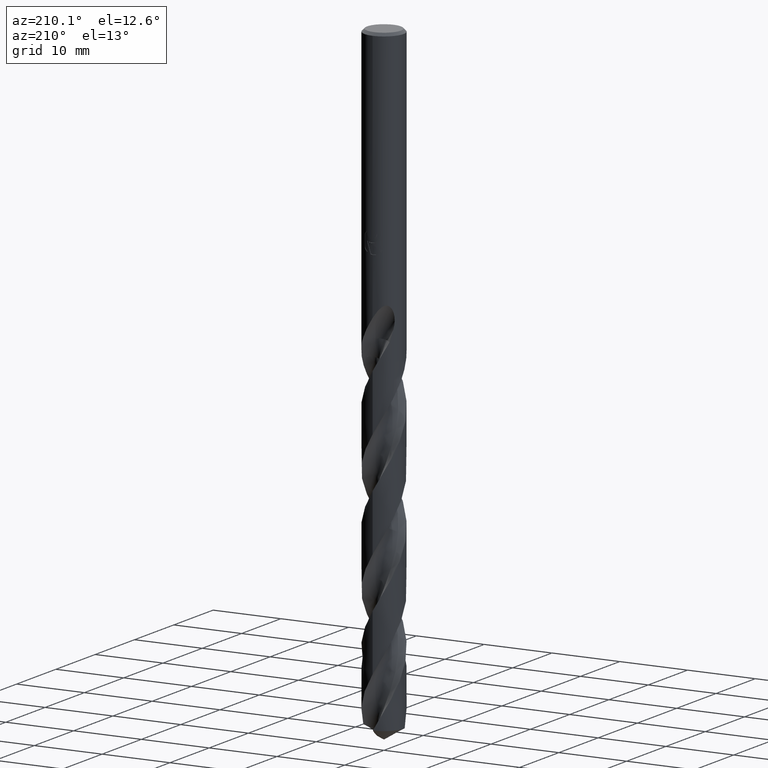
[diagram: clean part render]
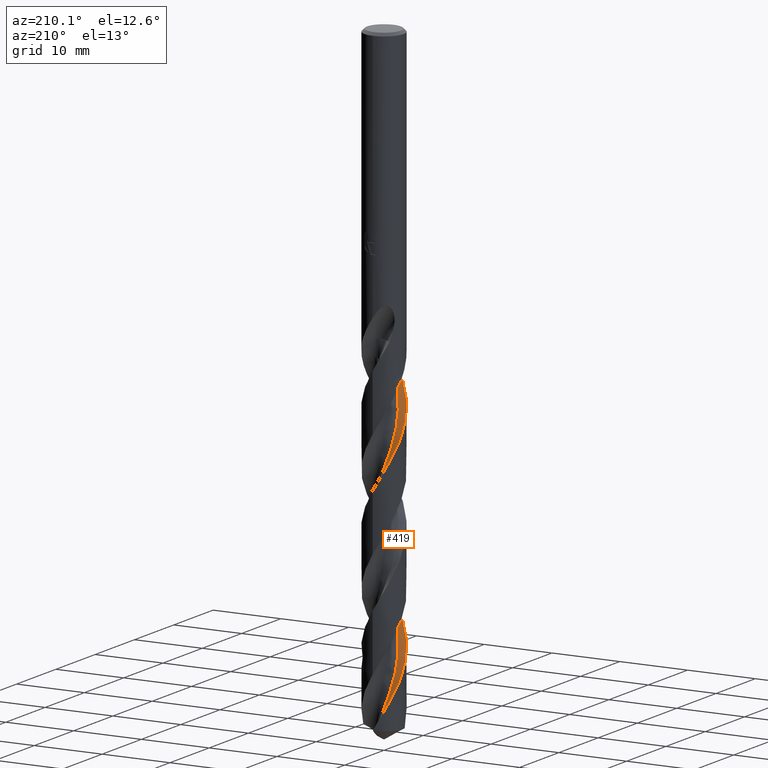
[diagram: same view with one face highlighted and labeled with its STEP entity id]
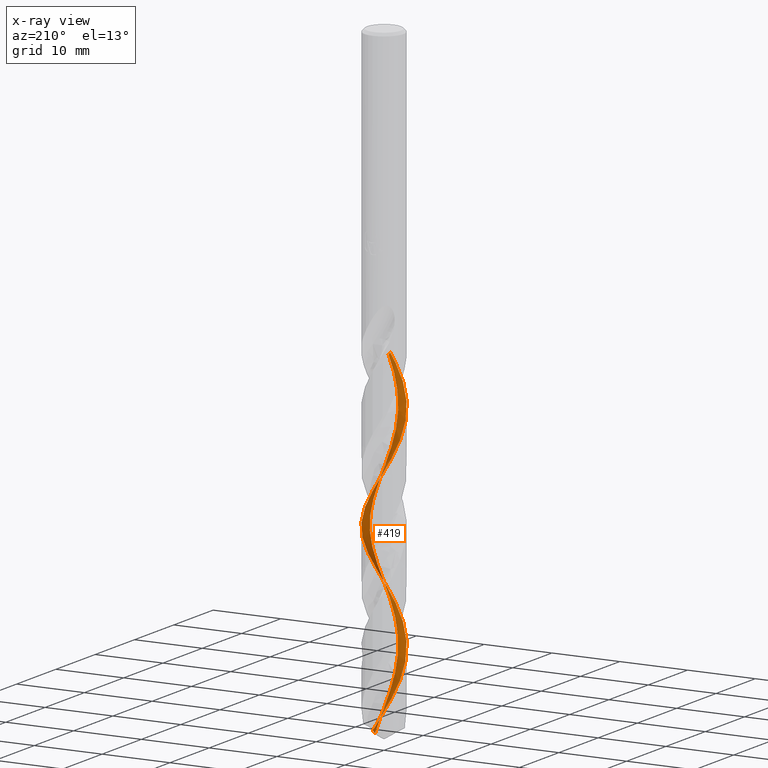
[diagram: x-ray of the same camera — body ghosted, the highlighted face saturated]
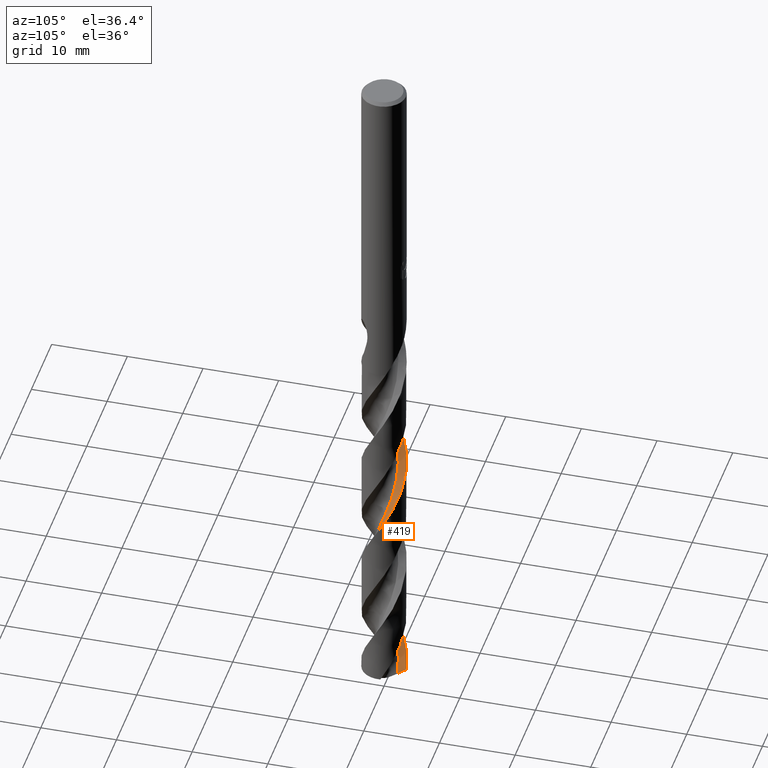
[diagram: same view with one face highlighted and labeled with its STEP entity id]
A machine part, auxiliary view. The second image highlights one B-rep face of the part: STEP entity #419.
The next image is the same camera in x-ray: the body ghosted, the highlighted face saturated — about 0% of this face is hidden behind the body in this view.
A second angle (auxiliary view) of the same face is appended — the face is thin or edge-on in the first view.
In plain terms, the highlighted face is a freeform B-spline surface patch.
Its self-contained STEP definition (entity closure, byte-faithful):
#293=VERTEX_POINT('',#816);
#319=VERTEX_POINT('',#845);
#343=EDGE_CURVE('',#645,#293,#869,.T.);
#369=EDGE_CURVE('',#319,#539,#900,.T.);
#387=EDGE_CURVE('',#753,#319,#921,.T.);
#419=ADVANCED_FACE('',(#956),#957,.F.);
#453=EDGE_CURVE('',#293,#575,#992,.T.);
#469=VERTEX_POINT('',#1009);
#527=EDGE_CURVE('',#539,#469,#1071,.T.);
#539=VERTEX_POINT('',#1085);
#575=VERTEX_POINT('',#1124);
#611=EDGE_CURVE('',#469,#645,#1163,.T.);
#617=EDGE_CURVE('',#753,#627,#1170,.T.);
#627=VERTEX_POINT('',#1182);
#645=VERTEX_POINT('',#1201);
#751=EDGE_CURVE('',#575,#627,#1315,.T.);
#753=VERTEX_POINT('',#1317);
#816=CARTESIAN_POINT('',(-0.0381319874682587,2.89974929115117,-91.2575042048201));
#845=CARTESIAN_POINT('',(0.708817146820512,-2.81193853461724,-43.005));
#869=B_SPLINE_CURVE_WITH_KNOTS('',3,(#1780,#1781,#1782,#1783,#1784,#1785,#1786,#1787,#1788,#1789,#1790,#1791,#1792,#1793,#1794,#1795,#1796,#1797,#1798,#1799,#1800,#1801,#1802,#1803,#1804,#1805,#1806,#1807,#1808,#1809,#1810,#1811,#1812,#1813,#1814,#1815,#1816,#1817,#1818,#1819,#1820,#1821,#1822,#1823,#1824,#1825,#1826,#1827,#1828,#1829,#1830,#1831,#1832,#1833,#1834,#1835,#1836,#1837,#1838,#1839,#1840,#1841,#1842,#1843,#1844,#1845,#1846,#1847,#1848,#1849,#1850,#1851,#1852,#1853,#1854,#1855,#1856,#1857,#1858,#1859,#1860,#1861,#1862,#1863,#1864,#1865,#1866,#1867,#1868,#1869,#1870,#1871,#1872,#1873,#1874,#1875,#1876,#1877,#1878,#1879,#1880,#1881,#1882,#1883,#1884,#1885,#1886,#1887,#1888,#1889,#1890,#1891,#1892,#1893,#1894,#1895,#1896,#1897,#1898,#1899,#1900,#1901,#1902,#1903,#1904,#1905,#1906,#1907,#1908,#1909,#1910,#1911),.UNSPECIFIED.,.F.,.F.,(4,2,2,2,2,2,2,2,2,2,2,2,2,2,2,2,2,2,2,2,2,2,2,2,2,2,2,2,2,2,2,2,2,2,2,2,2,2,2,2,2,2,2,2,2,2,2,2,2,2,2,2,2,2,2,2,2,2,2,2,2,2,2,2,2,4),(0.0,0.734687601992351,0.831900823616429,1.31989510520813,2.08909400224693,3.03914760897372,4.46201805980387,4.72253412784122,5.64926966020143,6.21012565874434,6.8001131264814,8.12153289467717,8.69105803085714,9.9700948490683,10.5528626127341,11.7634123763994,12.5715874202384,14.032657692584,14.1608117507879,15.102555920496,15.6631895520941,16.2462143594435,17.4330052633375,18.2952926140229,19.4688288888984,20.0514404123535,21.2400638655297,22.0940010850815,23.2656772812075,23.9655904610057,25.3884582794613,25.6570285675933,26.6004915529166,27.1605235385773,27.7187555234633,29.0237748224459,29.6099386749464,30.9057323737993,31.4869657691016,32.730748809919,33.4680922925951,34.8761184069554,35.1500579167859,36.0882912480827,36.6481110979691,37.213759276032,38.5104369832416,39.0913081906929,40.3394665584893,41.0694864308578,42.495176045494,42.7620772538122,43.7125495049517,44.2719425935741,44.8218555236205,46.1340946125214,46.7098608088504,48.0081814299684,48.5887450305573,49.852509500661,50.5585447799354,51.8394514170027,52.3256821394527,53.1847950576051,54.481717700277,55.7775264751287),.UNSPECIFIED.);
#900=B_SPLINE_CURVE_WITH_KNOTS('',3,(#3314,#3315,#3316,#3317,#3318,#3319,#3320,#3321,#3322,#3323,#3324,#3325,#3326,#3327,#3328,#3329,#3330,#3331,#3332,#3333,#3334,#3335,#3336,#3337,#3338,#3339,#3340,#3341,#3342,#3343,#3344,#3345,#3346,#3347,#3348,#3349,#3350,#3351,#3352,#3353,#3354,#3355,#3356,#3357,#3358,#3359,#3360,#3361,#3362,#3363,#3364,#3365,#3366,#3367,#3368,#3369,#3370,#3371,#3372,#3373,#3374,#3375,#3376,#3377,#3378,#3379,#3380,#3381,#3382,#3383,#3384,#3385,#3386,#3387,#3388,#3389,#3390,#3391,#3392,#3393,#3394,#3395,#3396,#3397,#3398,#3399,#3400,#3401,#3402,#3403,#3404,#3405,#3406,#3407,#3408,#3409,#3410,#3411,#3412,#3413,#3414,#3415,#3416,#3417,#3418,#3419,#3420,#3421,#3422,#3423,#3424,#3425,#3426,#3427,#3428,#3429,#3430,#3431,#3432,#3433,#3434,#3435,#3436,#3437,#3438,#3439,#3440,#3441,#3442,#3443,#3444,#3445),.UNSPECIFIED.,.F.,.F.,(4,2,2,2,2,2,2,2,2,2,2,2,2,2,2,2,2,2,2,2,2,2,2,2,2,2,2,2,2,2,2,2,2,2,2,2,2,2,2,2,2,2,2,2,2,2,2,2,2,2,2,2,2,2,2,2,2,2,2,2,2,2,2,2,2,4),(0.0,0.734687601992351,0.831900823616429,1.31989510520813,2.08909400224693,3.03914760897372,4.46201805980387,4.72253412784122,5.64926966020143,6.21012565874434,6.8001131264814,8.12153289467717,8.69105803085714,9.9700948490683,10.5528626127341,11.7634123763994,12.5715874202384,14.032657692584,14.1608117507879,15.102555920496,15.6631895520941,16.2462143594435,17.4330052633375,18.2952926140229,19.4688288888984,20.0514404123535,21.2400638655297,22.0940010850815,23.2656772812075,23.9655904610057,25.3884582794613,25.6570285675933,26.6004915529166,27.1605235385773,27.7187555234633,29.0237748224459,29.6099386749464,30.9057323737993,31.4869657691016,32.730748809919,33.4680922925951,34.8761184069554,35.1500579167859,36.0882912480827,36.6481110979691,37.213759276032,38.5104369832416,39.0913081906929,40.3394665584893,41.0694864308578,42.495176045494,42.7620772538122,43.7125495049517,44.2719425935741,44.8218555236205,46.1340946125214,46.7098608088504,48.0081814299684,48.5887450305573,49.852509500661,50.5585447799354,51.8394514170027,52.3256821394527,53.1847950576051,54.481717700277,55.7775264751287),.UNSPECIFIED.);
#921=B_SPLINE_CURVE_WITH_KNOTS('',3,(#3484,#3485,#3486,#3487,#3488,#3489),.UNSPECIFIED.,.F.,.F.,(4,2,4),(-3.86651675625355,-1.93325831788319,-0.0),.UNSPECIFIED.);
#956=FACE_OUTER_BOUND('',#3686,.T.);
#957=B_SPLINE_SURFACE_WITH_KNOTS('',3,3,((#3687,#3688,#3689,#3690,#3691,#3692,#3693,#3694,#3695,#3696,#3697,#3698,#3699,#3700,#3701,#3702,#3703,#3704,#3705,#3706,#3707,#3708,#3709,#3710,#3711,#3712,#3713,#3714,#3715,#3716,#3717,#3718,#3719,#3720,#3721,#3722,#3723,#3724,#3725,#3726,#3727,#3728,#3729,#3730,#3731,#3732,#3733,#3734,#3735,#3736,#3737,#3738,#3739,#3740,#3741,#3742,#3743,#3744,#3745,#3746,#3747,#3748,#3749,#3750,#3751,#3752,#3753,#3754,#3755,#3756,#3757,#3758,#3759,#3760,#3761,#3762,#3763,#3764,#3765,#3766,#3767,#3768,#3769,#3770,#3771,#3772,#3773,#3774,#3775,#3776,#3777,#3778,#3779,#3780,#3781,#3782,#3783,#3784,#3785,#3786,#3787),(#3788,#3789,#3790,#3791,#3792,#3793,#3794,#3795,#3796,#3797,#3798,#3799,#3800,#3801,#3802,#3803,#3804,#3805,#3806,#3807,#3808,#3809,#3810,#3811,#3812,#3813,#3814,#3815,#3816,#3817,#3818,#3819,#3820,#3821,#3822,#3823,#3824,#3825,#3826,#3827,#3828,#3829,#3830,#3831,#3832,#3833,#3834,#3835,#3836,#3837,#3838,#3839,#3840,#3841,#3842,#3843,#3844,#3845,#3846,#3847,#3848,#3849,#3850,#3851,#3852,#3853,#3854,#3855,#3856,#3857,#3858,#3859,#3860,#3861,#3862,#3863,#3864,#3865,#3866,#3867,#3868,#3869,#3870,#3871,#3872,#3873,#3874,#3875,#3876,#3877,#3878,#3879,#3880,#3881,#3882,#3883,#3884,#3885,#3886,#3887,#3888),(#3889,#3890,#3891,#3892,#3893,#3894,#3895,#3896,#3897,#3898,#3899,#3900,#3901,#3902,#3903,#3904,#3905,#3906,#3907,#3908,#3909,#3910,#3911,#3912,#3913,#3914,#3915,#3916,#3917,#3918,#3919,#3920,#3921,#3922,#3923,#3924,#3925,#3926,#3927,#3928,#3929,#3930,#3931,#3932,#3933,#3934,#3935,#3936,#3937,#3938,#3939,#3940,#3941,#3942,#3943,#3944,#3945,#3946,#3947,#3948,#3949,#3950,#3951,#3952,#3953,#3954,#3955,#3956,#3957,#3958,#3959,#3960,#3961,#3962,#3963,#3964,#3965,#3966,#3967,#3968,#3969,#3970,#3971,#3972,#3973,#3974,#3975,#3976,#3977,#3978,#3979,#3980,#3981,#3982,#3983,#3984,#3985,#3986,#3987,#3988,#3989),(#3990,#3991,#3992,#3993,#3994,#3995,#3996,#3997,#3998,#3999,#4000,#4001,#4002,#4003,#4004,#4005,#4006,#4007,#4008,#4009,#4010,#4011,#4012,#4013,#4014,#4015,#4016,#4017,#4018,#4019,#4020,#4021,#4022,#4023,#4024,#4025,#4026,#4027,#4028,#4029,#4030,#4031,#4032,#4033,#4034,#4035,#4036,#4037,#4038,#4039,#4040,#4041,#4042,#4043,#4044,#4045,#4046,#4047,#4048,#4049,#4050,#4051,#4052,#4053,#4054,#4055,#4056,#4057,#4058,#4059,#4060,#4061,#4062,#4063,#4064,#4065,#4066,#4067,#4068,#4069,#4070,#4071,#4072,#4073,#4074,#4075,#4076,#4077,#4078,#4079,#4080,#4081,#4082,#4083,#4084,#4085,#4086,#4087,#4088,#4089,#4090)),.UNSPECIFIED.,.F.,.F.,.F.,(4,4),(4,1,2,1,2,2,2,2,1,2,1,2,1,2,1,2,1,2,1,2,1,2,1,2,1,2,1,2,1,2,1,2,1,2,1,2,1,2,1,2,1,2,1,2,1,2,1,2,1,2,1,2,1,2,1,2,1,2,1,2,1,2,1,2,1,4),(-1.94741683716415E-015,3.86666667),(0.0,0.529348966193393,1.05869793238679,2.11739586477357,3.17609379716036,4.23479172954715,5.29348966193393,6.35218759432072,7.41088552670751,8.46958345909429,9.52828139148108,10.5869793238679,11.6456772562547,12.7043751886414,13.7630731210282,14.821771053415,15.8804689858018,16.9391669181886,17.9978648505754,19.0565627829622,20.1152607153489,21.1739586477357,22.2326565801225,23.2913545125093,24.3500524448961,25.4087503772829,26.4674483096697,27.5261462420565,28.5848441744432,29.64354210683,30.7022400392168,31.7609379716036,32.8196359039904,33.8783338363772,34.937031768764,35.9957297011508,37.0544276335375,38.1131255659243,39.1718234983111,40.2305214306979,41.2892193630847,42.3479172954715,43.4066152278582,44.465313160245,45.5240110926318,46.5827090250186,47.6414069574054,48.7001048897922,49.758802822179,50.8175007545658,51.8761986869525,52.9348966193393,53.9935945517261,55.0522924841129,56.1109904164997,57.1696883488865,58.2283862812733,59.2870842136601,60.3457821460468,61.4044800784336,62.4631780108204,63.5218759432072,64.580573875594,65.6392718079808,66.6979697403676,67.7566676727543),.UNSPECIFIED.);
#992=B_SPLINE_CURVE_WITH_KNOTS('',3,(#4531,#4532,#4533,#4534,#4535,#4536,#4537,#4538),.UNSPECIFIED.,.F.,.F.,(4,2,2,4),(0.0,1.43879048334426,2.13932057954683,2.83251360486865),.UNSPECIFIED.);
#1009=CARTESIAN_POINT('',(7.59401678921689E-015,2.89993508991896,-59.9335191182572));
#1071=B_SPLINE_CURVE_WITH_KNOTS('',3,(#5396,#5397,#5398,#5399,#5400,#5401,#5402,#5403,#5404,#5405,#5406,#5407,#5408,#5409,#5410,#5411,#5412,#5413,#5414,#5415,#5416,#5417,#5418,#5419,#5420,#5421,#5422,#5423,#5424,#5425,#5426,#5427,#5428,#5429,#5430,#5431,#5432,#5433,#5434,#5435,#5436,#5437,#5438,#5439,#5440,#5441,#5442,#5443,#5444,#5445,#5446,#5447,#5448,#5449,#5450,#5451,#5452,#5453,#5454,#5455,#5456,#5457,#5458,#5459,#5460,#5461,#5462,#5463,#5464,#5465,#5466,#5467,#5468,#5469,#5470,#5471,#5472,#5473,#5474,#5475,#5476,#5477,#5478,#5479,#5480,#5481,#5482,#5483,#5484,#5485,#5486,#5487,#5488,#5489,#5490,#5491,#5492,#5493,#5494,#5495,#5496,#5497,#5498,#5499,#5500,#5501,#5502,#5503,#5504,#5505,#5506,#5507,#5508,#5509,#5510,#5511,#5512,#5513,#5514,#5515,#5516,#5517,#5518,#5519,#5520,#5521,#5522,#5523,#5524,#5525,#5526,#5527),.UNSPECIFIED.,.F.,.F.,(4,2,2,2,2,2,2,2,2,2,2,2,2,2,2,2,2,2,2,2,2,2,2,2,2,2,2,2,2,2,2,2,2,2,2,2,2,2,2,2,2,2,2,2,2,2,2,2,2,2,2,2,2,2,2,2,2,2,2,2,2,2,2,2,2,4),(0.0,0.734687601992351,0.831900823616429,1.31989510520813,2.08909400224693,3.03914760897372,4.46201805980387,4.72253412784122,5.64926966020143,6.21012565874434,6.8001131264814,8.12153289467717,8.69105803085714,9.9700948490683,10.5528626127341,11.7634123763994,12.5715874202384,14.032657692584,14.1608117507879,15.102555920496,15.6631895520941,16.2462143594435,17.4330052633375,18.2952926140229,19.4688288888984,20.0514404123535,21.2400638655297,22.0940010850815,23.2656772812075,23.9655904610057,25.3884582794613,25.6570285675933,26.6004915529166,27.1605235385773,27.7187555234633,29.0237748224459,29.6099386749464,30.9057323737993,31.4869657691016,32.730748809919,33.4680922925951,34.8761184069554,35.1500579167859,36.0882912480827,36.6481110979691,37.213759276032,38.5104369832416,39.0913081906929,40.3394665584893,41.0694864308578,42.495176045494,42.7620772538122,43.7125495049517,44.2719425935741,44.8218555236205,46.1340946125214,46.7098608088504,48.0081814299684,48.5887450305573,49.852509500661,50.5585447799354,51.8394514170027,52.3256821394527,53.1847950576051,54.481717700277,55.7775264751287),.UNSPECIFIED.);
#1085=CARTESIAN_POINT('',(1.37223024195501E-014,-2.89990256687544,-44.2387100143636));
#1124=CARTESIAN_POINT('',(-1.39194761994339E-012,2.80965834874129,-91.3117869453193));
#1163=B_SPLINE_CURVE_WITH_KNOTS('',3,(#7573,#7574,#7575,#7576,#7577,#7578,#7579,#7580,#7581,#7582,#7583,#7584,#7585,#7586,#7587,#7588,#7589,#7590,#7591,#7592,#7593,#7594,#7595,#7596,#7597,#7598,#7599,#7600,#7601,#7602,#7603,#7604,#7605,#7606,#7607,#7608,#7609,#7610,#7611,#7612,#7613,#7614,#7615,#7616,#7617,#7618,#7619,#7620,#7621,#7622,#7623,#7624,#7625,#7626,#7627,#7628,#7629,#7630,#7631,#7632,#7633,#7634,#7635,#7636,#7637,#7638,#7639,#7640,#7641,#7642,#7643,#7644,#7645,#7646,#7647,#7648,#7649,#7650,#7651,#7652,#7653,#7654,#7655,#7656,#7657,#7658,#7659,#7660,#7661,#7662,#7663,#7664,#7665,#7666,#7667,#7668,#7669,#7670,#7671,#7672,#7673,#7674,#7675,#7676,#7677,#7678,#7679,#7680,#7681,#7682,#7683,#7684,#7685,#7686,#7687,#7688,#7689,#7690,#7691,#7692,#7693,#7694,#7695,#7696,#7697,#7698,#7699,#7700,#7701,#7702,#7703,#7704),.UNSPECIFIED.,.F.,.F.,(4,2,2,2,2,2,2,2,2,2,2,2,2,2,2,2,2,2,2,2,2,2,2,2,2,2,2,2,2,2,2,2,2,2,2,2,2,2,2,2,2,2,2,2,2,2,2,2,2,2,2,2,2,2,2,2,2,2,2,2,2,2,2,2,2,4),(0.0,0.734687601992351,0.831900823616429,1.31989510520813,2.08909400224693,3.03914760897372,4.46201805980387,4.72253412784122,5.64926966020143,6.21012565874434,6.8001131264814,8.12153289467717,8.69105803085714,9.9700948490683,10.5528626127341,11.7634123763994,12.5715874202384,14.032657692584,14.1608117507879,15.102555920496,15.6631895520941,16.2462143594435,17.4330052633375,18.2952926140229,19.4688288888984,20.0514404123535,21.2400638655297,22.0940010850815,23.2656772812075,23.9655904610057,25.3884582794613,25.6570285675933,26.6004915529166,27.1605235385773,27.7187555234633,29.0237748224459,29.6099386749464,30.9057323737993,31.4869657691016,32.730748809919,33.4680922925951,34.8761184069554,35.1500579167859,36.0882912480827,36.6481110979691,37.213759276032,38.5104369832416,39.0913081906929,40.3394665584893,41.0694864308578,42.495176045494,42.7620772538122,43.7125495049517,44.2719425935741,44.8218555236205,46.1340946125214,46.7098608088504,48.0081814299684,48.5887450305573,49.852509500661,50.5585447799354,51.8394514170027,52.3256821394527,53.1847950576051,54.481717700277,55.7775264751287),.UNSPECIFIED.);
#1170=B_SPLINE_CURVE_WITH_KNOTS('',3,(#7712,#7713,#7714,#7715,#7716,#7717,#7718,#7719,#7720,#7721,#7722,#7723,#7724,#7725,#7726,#7727,#7728,#7729,#7730,#7731,#7732,#7733,#7734,#7735,#7736,#7737,#7738,#7739,#7740,#7741,#7742,#7743,#7744,#7745,#7746,#7747,#7748,#7749,#7750,#7751,#7752,#7753,#7754,#7755,#7756,#7757,#7758,#7759,#7760,#7761,#7762,#7763,#7764,#7765,#7766,#7767,#7768,#7769,#7770,#7771,#7772,#7773,#7774,#7775,#7776,#7777,#7778,#7779,#7780,#7781,#7782),.UNSPECIFIED.,.F.,.F.,(4,1,2,1,2,2,1,2,2,2,2,2,2,2,2,2,2,2,2,2,2,2,2,2,2,2,2,2,2,2,2,2,2,2,2,2,4),(0.0,0.529348966193393,1.05869793238679,2.11739586477357,3.17609379716036,4.23479172954715,5.29348966193393,6.35218759432072,8.46958345909429,10.5869793238679,12.7043751886414,14.821771053415,16.9391669181886,19.0565627829622,21.1739586477357,23.2913545125093,25.4087503772829,27.5261462420565,29.64354210683,31.7609379716036,33.8783338363772,35.9957297011508,38.1131255659243,40.2305214306979,42.3479172954715,44.465313160245,46.5827090250186,48.7001048897922,50.8175007545658,52.9348966193393,55.0522924841129,57.1696883488865,59.2870842136601,61.4044800784336,63.5218759432072,65.6392718079808,67.7566676727543),.UNSPECIFIED.);
#1182=CARTESIAN_POINT('',(0.285362454904968,1.8068780040196,-91.9008618692614));
#1201=CARTESIAN_POINT('',(1.73189773644264E-015,-2.89996761380549,-75.6287350278359));
#1315=B_SPLINE_CURVE_WITH_KNOTS('',3,(#10807,#10808,#10809,#10810,#10811,#10812,#10813,#10814),.UNSPECIFIED.,.F.,.F.,(4,2,2,4),(0.0,1.43879048334426,2.13932057954683,2.83251360486865),.UNSPECIFIED.);
#1317=CARTESIAN_POINT('',(0.371196988509928,-1.78734690865441,-43.005));
#1780=CARTESIAN_POINT('',(0.709196864390202,-2.81184278890881,-43.0043266329164));
#1781=CARTESIAN_POINT('',(0.589819924759416,-2.84195223305977,-43.2160258381416));
#1782=CARTESIAN_POINT('',(0.468776034634397,-2.8643967198523,-43.4272015964065));
#1783=CARTESIAN_POINT('',(0.330658596945046,-2.88103405007569,-43.6670962741344));
#1784=CARTESIAN_POINT('',(0.314507135909671,-2.88284192165602,-43.6951349575803));
#1785=CARTESIAN_POINT('',(0.217230326482938,-2.89290369909604,-43.8638616264259));
#1786=CARTESIAN_POINT('',(0.135774800674416,-2.89787060357993,-44.004585474267));
#1787=CARTESIAN_POINT('',(-0.074381514166789,-2.90179993398426,-44.3670175475019));
#1788=CARTESIAN_POINT('',(-0.203029145353825,-2.89565063021488,-44.5880982597957));
#1789=CARTESIAN_POINT('',(-0.488901711454981,-2.86281411659515,-45.0834585131535));
#1790=CARTESIAN_POINT('',(-0.645019690346248,-2.83171762376365,-45.3567065406475));
#1791=CARTESIAN_POINT('',(-1.02641912146738,-2.7225915342234,-46.0406911637749));
#1792=CARTESIAN_POINT('',(-1.24633355511751,-2.62922566431542,-46.4492730089021));
#1793=CARTESIAN_POINT('',(-1.49019489722658,-2.4881092516152,-46.9343137069972));
#1794=CARTESIAN_POINT('',(-1.52742685316338,-2.46542801260504,-47.0093448240901));
#1795=CARTESIAN_POINT('',(-1.69469731268276,-2.35828650455709,-47.351515218612));
#1796=CARTESIAN_POINT('',(-1.81833690228464,-2.26432394942695,-47.6184666809685));
#1797=CARTESIAN_POINT('',(-2.00378490003421,-2.09836374197422,-48.0472472979415));
#1798=CARTESIAN_POINT('',(-2.07064078423254,-2.03242246317552,-48.2087785507716));
#1799=CARTESIAN_POINT('',(-2.20104968878787,-1.89066594952387,-48.5404423289429));
#1800=CARTESIAN_POINT('',(-2.26412480707362,-1.81465315627334,-48.7102880190157));
#1801=CARTESIAN_POINT('',(-2.45547280324397,-1.55852546491168,-49.2612979775579));
#1802=CARTESIAN_POINT('',(-2.56713592661828,-1.36683607651739,-49.6411883184141));
#1803=CARTESIAN_POINT('',(-2.69421694791627,-1.07693551033774,-50.186184672626));
#1804=CARTESIAN_POINT('',(-2.72814880148011,-0.987820594419387,-50.3501570491569));
#1805=CARTESIAN_POINT('',(-2.82382700616999,-0.693755596008218,-50.8830968931142));
#1806=CARTESIAN_POINT('',(-2.86733093255858,-0.483506136455628,-51.2509569154893));
#1807=CARTESIAN_POINT('',(-2.89638542323459,-0.173189537382043,-51.7876180872426));
#1808=CARTESIAN_POINT('',(-2.90056982142947,-0.0756927287708941,-51.9553914710871));
#1809=CARTESIAN_POINT('',(-2.89831444463653,0.224342338911806,-52.4724511229055));
#1810=CARTESIAN_POINT('',(-2.87557607976341,0.426229716092262,-52.8208215776271));
#1811=CARTESIAN_POINT('',(-2.80283920299499,0.756269223561304,-53.4027965164672));
#1812=CARTESIAN_POINT('',(-2.76451945364778,0.886150664081288,-53.6353337631728));
#1813=CARTESIAN_POINT('',(-2.63191623943872,1.24190505227851,-54.2897078462182));
#1814=CARTESIAN_POINT('',(-2.51788090277063,1.45934411023886,-54.7093797065605));
#1815=CARTESIAN_POINT('',(-2.36556493916384,1.67753664902391,-55.1675407943511));
#1816=CARTESIAN_POINT('',(-2.35308924782351,1.69499203512883,-55.2044792950339));
#1817=CARTESIAN_POINT('',(-2.2473267059892,1.83955175591963,-55.5129735472538));
#1818=CARTESIAN_POINT('',(-2.14402480695563,1.95897316291354,-55.7844139536754));
#1819=CARTESIAN_POINT('',(-1.96458581109958,2.13513145862369,-56.2176903296006));
#1820=CARTESIAN_POINT('',(-1.8944575395359,2.19759537385795,-56.379247417778));
#1821=CARTESIAN_POINT('',(-1.74543147559522,2.31788391160528,-56.7090121685746));
#1822=CARTESIAN_POINT('',(-1.66643662148603,2.37531004701323,-56.8769084545678));
#1823=CARTESIAN_POINT('',(-1.41836335931646,2.53718220237806,-57.3873540556447));
#1824=CARTESIAN_POINT('',(-1.24124500589971,2.62838483814613,-57.7290506124596));
#1825=CARTESIAN_POINT('',(-0.921667464707236,2.75335884415866,-58.3199752886997));
#1826=CARTESIAN_POINT('',(-0.783489792841563,2.79581422053313,-58.5681092525272));
#1827=CARTESIAN_POINT('',(-0.451247591307603,2.87133494212418,-59.15536522581));
#1828=CARTESIAN_POINT('',(-0.25572263849469,2.89531670443546,-59.49313027734));
#1829=CARTESIAN_POINT('',(0.0383553324620512,2.90132305926764,-59.999592220549));
#1830=CARTESIAN_POINT('',(0.135923123659335,2.89838978849652,-60.1674015531133));
#1831=CARTESIAN_POINT('',(0.431471096796989,2.87455339500278,-60.6783495184131));
#1832=CARTESIAN_POINT('',(0.627696703381162,2.8381807534145,-61.0206286274081));
#1833=CARTESIAN_POINT('',(0.955900590242541,2.74159726131393,-61.6097790106421));
#1834=CARTESIAN_POINT('',(1.08988973709356,2.69113716741953,-61.8555593761785));
#1835=CARTESIAN_POINT('',(1.3975173783784,2.54854175554857,-62.439979285129));
#1836=CARTESIAN_POINT('',(1.56670454619967,2.44818709349459,-62.7772854763642));
#1837=CARTESIAN_POINT('',(1.81877272314258,2.26174211436463,-63.3171440009698));
#1838=CARTESIAN_POINT('',(1.90868737611621,2.1863916184141,-63.5187430922175));
#1839=CARTESIAN_POINT('',(2.16674676330566,1.94206641984917,-64.1312355235213));
#1840=CARTESIAN_POINT('',(2.31895818381013,1.75753831806082,-64.5403091818079));
#1841=CARTESIAN_POINT('',(2.47105099488338,1.51842563975636,-65.0282241614656));
#1842=CARTESIAN_POINT('',(2.49430725855991,1.47991221332055,-65.1056660736381));
#1843=CARTESIAN_POINT('',(2.59516583319139,1.30375273598382,-65.4553745757094));
#1844=CARTESIAN_POINT('',(2.66234128747465,1.16043147898697,-65.7274352820531));
#1845=CARTESIAN_POINT('',(2.75024896171845,0.924460356146151,-66.1612671925264));
#1846=CARTESIAN_POINT('',(2.77871702440493,0.835007760530864,-66.3227306289101));
#1847=CARTESIAN_POINT('',(2.82681089447048,0.65390656119108,-66.6453527343366));
#1848=CARTESIAN_POINT('',(2.84642210462004,0.562427974583277,-66.8062492486754));
#1849=CARTESIAN_POINT('',(2.89701049504161,0.254552472355838,-67.34396392882));
#1850=CARTESIAN_POINT('',(2.90796844421366,0.0355133927666785,-67.7195975123642));
#1851=CARTESIAN_POINT('',(2.88799921808818,-0.280771397296302,-68.2652659560469));
#1852=CARTESIAN_POINT('',(2.87683578137268,-0.378388692770556,-68.434204591919));
#1853=CARTESIAN_POINT('',(2.82518825772053,-0.689300942719356,-68.977367921698));
#1854=CARTESIAN_POINT('',(2.76569458023569,-0.898794154200102,-69.3504068895454));
#1855=CARTESIAN_POINT('',(2.64640040354734,-1.18987263572748,-69.8920439325809));
#1856=CARTESIAN_POINT('',(2.60495579698237,-1.27805637760547,-70.0595688133809));
#1857=CARTESIAN_POINT('',(2.46118353987375,-1.54781353398641,-70.5863465494807));
#1858=CARTESIAN_POINT('',(2.34363691674901,-1.72063327984319,-70.9445826310018));
#1859=CARTESIAN_POINT('',(2.12844703537059,-1.97351170771502,-71.5163303205503));
#1860=CARTESIAN_POINT('',(2.04245302642401,-2.06237808128504,-71.7287776110998));
#1861=CARTESIAN_POINT('',(1.77660671426545,-2.30413975147303,-72.3481052932362));
#1862=CARTESIAN_POINT('',(1.58334794538412,-2.4410025558116,-72.7531700302044));
#1863=CARTESIAN_POINT('',(1.33514313974828,-2.57473976020594,-73.2386035973654));
#1864=CARTESIAN_POINT('',(1.29421718751436,-2.59555261483421,-73.3176316225911));
#1865=CARTESIAN_POINT('',(1.11102931449108,-2.68330389430504,-73.6675581270541));
#1866=CARTESIAN_POINT('',(0.963944105202415,-2.73958423965281,-73.9382565192406));
#1867=CARTESIAN_POINT('',(0.722982270927824,-2.80996332020994,-74.3707419340157));
#1868=CARTESIAN_POINT('',(0.631691606703626,-2.83188507521568,-74.5322286319872));
#1869=CARTESIAN_POINT('',(0.446302246679511,-2.86698621178643,-74.857096144676));
#1870=CARTESIAN_POINT('',(0.352353484226026,-2.88004046485142,-75.0202058990032));
#1871=CARTESIAN_POINT('',(0.0415745769452985,-2.90779623897309,-75.5579269589028));
#1872=CARTESIAN_POINT('',(-0.17638593387573,-2.90275193042695,-75.9313690396473));
#1873=CARTESIAN_POINT('',(-0.488295631868381,-2.86022283001012,-76.4733812363293));
#1874=CARTESIAN_POINT('',(-0.584034200610236,-2.84221777349979,-76.6408727951698));
#1875=CARTESIAN_POINT('',(-0.881999503603227,-2.77049610450104,-77.169030861864));
#1876=CARTESIAN_POINT('',(-1.07952135003523,-2.69967927711464,-77.5286673094258));
#1877=CARTESIAN_POINT('',(-1.37783742558705,-2.55467980726858,-78.0998025877722));
#1878=CARTESIAN_POINT('',(-1.48438795183302,-2.49427350514912,-78.3102380740958));
#1879=CARTESIAN_POINT('',(-1.78673812498564,-2.29662569906975,-78.9328078256753));
#1880=CARTESIAN_POINT('',(-1.9698674405227,-2.14164424703875,-79.343058648088));
#1881=CARTESIAN_POINT('',(-2.16228349413605,-1.93297596733971,-79.8317579330699));
#1882=CARTESIAN_POINT('',(-2.19185112192724,-1.89938254433786,-79.9087912170495));
#1883=CARTESIAN_POINT('',(-2.32310044288196,-1.7431173968345,-80.260365742046));
#1884=CARTESIAN_POINT('',(-2.41535266404678,-1.61286468289323,-80.5346904609563));
#1885=CARTESIAN_POINT('',(-2.54415793355382,-1.3949664377409,-80.9707593143221));
#1886=CARTESIAN_POINT('',(-2.58794559649669,-1.31195208915044,-81.1321851747051));
#1887=CARTESIAN_POINT('',(-2.66666231668683,-1.14337255934305,-81.45251707738));
#1888=CARTESIAN_POINT('',(-2.70166039941915,-1.05802186712333,-81.6111702879698));
#1889=CARTESIAN_POINT('',(-2.80618364107794,-0.763935484255457,-82.1490630429778));
#1890=CARTESIAN_POINT('',(-2.85605439550709,-0.548902425567817,-82.52709708689));
#1891=CARTESIAN_POINT('',(-2.89211663726846,-0.23428509810437,-83.072348159548));
#1892=CARTESIAN_POINT('',(-2.89831086315649,-0.137885752075977,-83.2384513480526));
#1893=CARTESIAN_POINT('',(-2.90279481863129,0.176226004983761,-83.77984122963));
#1894=CARTESIAN_POINT('',(-2.88139551911636,0.39358277263867,-84.1539408687989));
#1895=CARTESIAN_POINT('',(-2.81547414390866,0.701791289294951,-84.6966110868712));
#1896=CARTESIAN_POINT('',(-2.79032820090689,0.795905060807742,-84.8641000364877));
#1897=CARTESIAN_POINT('',(-2.69559130004443,1.09023158141851,-85.3969411240678));
#1898=CARTESIAN_POINT('',(-2.60874412983381,1.28426496764883,-85.7612143243447));
#1899=CARTESIAN_POINT('',(-2.44156318722105,1.56931171979168,-86.3302106866316));
#1900=CARTESIAN_POINT('',(-2.37546036929183,1.66767561401405,-86.5338556696316));
#1901=CARTESIAN_POINT('',(-2.17310184892078,1.93227674829981,-87.1079704115577));
#1902=CARTESIAN_POINT('',(-2.02404739530892,2.08791203244397,-87.4770840384082));
#1903=CARTESIAN_POINT('',(-1.79648885003799,2.27799127871136,-87.9875650996091));
#1904=CARTESIAN_POINT('',(-1.73171942197208,2.32760791365919,-88.1278859755498));
#1905=CARTESIAN_POINT('',(-1.54700194219282,2.45713398905651,-88.5166359860108));
#1906=CARTESIAN_POINT('',(-1.42303825434204,2.53094641164164,-88.764757637246));
#1907=CARTESIAN_POINT('',(-1.09946449878408,2.69229642379989,-89.387788805201));
#1908=CARTESIAN_POINT('',(-0.894514007505912,2.76715319852434,-89.7610084112836));
#1909=CARTESIAN_POINT('',(-0.47191971256064,2.86958388846035,-90.5101989459375));
#1910=CARTESIAN_POINT('',(-0.255565140427376,2.89688924810318,-90.8831695377742));
#1911=CARTESIAN_POINT('',(-0.0381319874682582,2.89974929115117,-91.2575042048201));
#3314=CARTESIAN_POINT('',(0.709196864390202,-2.81184278890881,-43.0043266329164));
#3315=CARTESIAN_POINT('',(0.589819924759416,-2.84195223305977,-43.2160258381416));
#3316=CARTESIAN_POINT('',(0.468776034634397,-2.8643967198523,-43.4272015964065));
#3317=CARTESIAN_POINT('',(0.330658596945046,-2.88103405007569,-43.6670962741344));
#3318=CARTESIAN_POINT('',(0.314507135909671,-2.88284192165602,-43.6951349575803));
#3319=CARTESIAN_POINT('',(0.217230326482938,-2.89290369909604,-43.8638616264259));
#3320=CARTESIAN_POINT('',(0.135774800674416,-2.89787060357993,-44.004585474267));
#3321=CARTESIAN_POINT('',(-0.074381514166789,-2.90179993398426,-44.3670175475019));
#3322=CARTESIAN_POINT('',(-0.203029145353825,-2.89565063021488,-44.5880982597957));
#3323=CARTESIAN_POINT('',(-0.488901711454981,-2.86281411659515,-45.0834585131535));
#3324=CARTESIAN_POINT('',(-0.645019690346248,-2.83171762376365,-45.3567065406475));
#3325=CARTESIAN_POINT('',(-1.02641912146738,-2.7225915342234,-46.0406911637749));
#3326=CARTESIAN_POINT('',(-1.24633355511751,-2.62922566431542,-46.4492730089021));
#3327=CARTESIAN_POINT('',(-1.49019489722658,-2.4881092516152,-46.9343137069972));
#3328=CARTESIAN_POINT('',(-1.52742685316338,-2.46542801260504,-47.0093448240901));
#3329=CARTESIAN_POINT('',(-1.69469731268276,-2.35828650455709,-47.351515218612));
#3330=CARTESIAN_POINT('',(-1.81833690228464,-2.26432394942695,-47.6184666809685));
#3331=CARTESIAN_POINT('',(-2.00378490003421,-2.09836374197422,-48.0472472979415));
#3332=CARTESIAN_POINT('',(-2.07064078423254,-2.03242246317552,-48.2087785507716));
#3333=CARTESIAN_POINT('',(-2.20104968878787,-1.89066594952387,-48.5404423289429));
#3334=CARTESIAN_POINT('',(-2.26412480707362,-1.81465315627334,-48.7102880190157));
#3335=CARTESIAN_POINT('',(-2.45547280324397,-1.55852546491168,-49.2612979775579));
#3336=CARTESIAN_POINT('',(-2.56713592661828,-1.36683607651739,-49.6411883184141));
#3337=CARTESIAN_POINT('',(-2.69421694791627,-1.07693551033774,-50.186184672626));
#3338=CARTESIAN_POINT('',(-2.72814880148011,-0.987820594419387,-50.3501570491569));
#3339=CARTESIAN_POINT('',(-2.82382700616999,-0.693755596008218,-50.8830968931142));
#3340=CARTESIAN_POINT('',(-2.86733093255858,-0.483506136455628,-51.2509569154893));
#3341=CARTESIAN_POINT('',(-2.89638542323459,-0.173189537382043,-51.7876180872426));
#3342=CARTESIAN_POINT('',(-2.90056982142947,-0.0756927287708941,-51.9553914710871));
#3343=CARTESIAN_POINT('',(-2.89831444463653,0.224342338911806,-52.4724511229055));
#3344=CARTESIAN_POINT('',(-2.87557607976341,0.426229716092262,-52.8208215776271));
#3345=CARTESIAN_POINT('',(-2.80283920299499,0.756269223561304,-53.4027965164672));
#3346=CARTESIAN_POINT('',(-2.76451945364778,0.886150664081288,-53.6353337631728));
#3347=CARTESIAN_POINT('',(-2.63191623943872,1.24190505227851,-54.2897078462182));
#3348=CARTESIAN_POINT('',(-2.51788090277063,1.45934411023886,-54.7093797065605));
#3349=CARTESIAN_POINT('',(-2.36556493916384,1.67753664902391,-55.1675407943511));
#3350=CARTESIAN_POINT('',(-2.35308924782351,1.69499203512883,-55.2044792950339));
#3351=CARTESIAN_POINT('',(-2.2473267059892,1.83955175591963,-55.5129735472538));
#3352=CARTESIAN_POINT('',(-2.14402480695563,1.95897316291354,-55.7844139536754));
#3353=CARTESIAN_POINT('',(-1.96458581109958,2.13513145862369,-56.2176903296006));
#3354=CARTESIAN_POINT('',(-1.8944575395359,2.19759537385795,-56.379247417778));
#3355=CARTESIAN_POINT('',(-1.74543147559522,2.31788391160528,-56.7090121685746));
#3356=CARTESIAN_POINT('',(-1.66643662148603,2.37531004701323,-56.8769084545678));
#3357=CARTESIAN_POINT('',(-1.41836335931646,2.53718220237806,-57.3873540556447));
#3358=CARTESIAN_POINT('',(-1.24124500589971,2.62838483814613,-57.7290506124596));
#3359=CARTESIAN_POINT('',(-0.921667464707236,2.75335884415866,-58.3199752886997));
#3360=CARTESIAN_POINT('',(-0.783489792841563,2.79581422053313,-58.5681092525272));
#3361=CARTESIAN_POINT('',(-0.451247591307603,2.87133494212418,-59.15536522581));
#3362=CARTESIAN_POINT('',(-0.25572263849469,2.89531670443546,-59.49313027734));
#3363=CARTESIAN_POINT('',(0.0383553324620512,2.90132305926764,-59.999592220549));
#3364=CARTESIAN_POINT('',(0.135923123659335,2.89838978849652,-60.1674015531133));
#3365=CARTESIAN_POINT('',(0.431471096796989,2.87455339500278,-60.6783495184131));
#3366=CARTESIAN_POINT('',(0.627696703381162,2.8381807534145,-61.0206286274081));
#3367=CARTESIAN_POINT('',(0.955900590242541,2.74159726131393,-61.6097790106421));
#3368=CARTESIAN_POINT('',(1.08988973709356,2.69113716741953,-61.8555593761785));
#3369=CARTESIAN_POINT('',(1.3975173783784,2.54854175554857,-62.439979285129));
#3370=CARTESIAN_POINT('',(1.56670454619967,2.44818709349459,-62.7772854763642));
#3371=CARTESIAN_POINT('',(1.81877272314258,2.26174211436463,-63.3171440009698));
#3372=CARTESIAN_POINT('',(1.90868737611621,2.1863916184141,-63.5187430922175));
#3373=CARTESIAN_POINT('',(2.16674676330566,1.94206641984917,-64.1312355235213));
#3374=CARTESIAN_POINT('',(2.31895818381013,1.75753831806082,-64.5403091818079));
#3375=CARTESIAN_POINT('',(2.47105099488338,1.51842563975636,-65.0282241614656));
#3376=CARTESIAN_POINT('',(2.49430725855991,1.47991221332055,-65.1056660736381));
#3377=CARTESIAN_POINT('',(2.59516583319139,1.30375273598382,-65.4553745757094));
#3378=CARTESIAN_POINT('',(2.66234128747465,1.16043147898697,-65.7274352820531));
#3379=CARTESIAN_POINT('',(2.75024896171845,0.924460356146151,-66.1612671925264));
#3380=CARTESIAN_POINT('',(2.77871702440493,0.835007760530864,-66.3227306289101));
#3381=CARTESIAN_POINT('',(2.82681089447048,0.65390656119108,-66.6453527343366));
#3382=CARTESIAN_POINT('',(2.84642210462004,0.562427974583277,-66.8062492486754));
#3383=CARTESIAN_POINT('',(2.89701049504161,0.254552472355838,-67.34396392882));
#3384=CARTESIAN_POINT('',(2.90796844421366,0.0355133927666785,-67.7195975123642));
#3385=CARTESIAN_POINT('',(2.88799921808818,-0.280771397296302,-68.2652659560469));
#3386=CARTESIAN_POINT('',(2.87683578137268,-0.378388692770556,-68.434204591919));
#3387=CARTESIAN_POINT('',(2.82518825772053,-0.689300942719356,-68.977367921698));
#3388=CARTESIAN_POINT('',(2.76569458023569,-0.898794154200102,-69.3504068895454));
#3389=CARTESIAN_POINT('',(2.64640040354734,-1.18987263572748,-69.8920439325809));
#3390=CARTESIAN_POINT('',(2.60495579698237,-1.27805637760547,-70.0595688133809));
#3391=CARTESIAN_POINT('',(2.46118353987375,-1.54781353398641,-70.5863465494807));
#3392=CARTESIAN_POINT('',(2.34363691674901,-1.72063327984319,-70.9445826310018));
#3393=CARTESIAN_POINT('',(2.12844703537059,-1.97351170771502,-71.5163303205503));
#3394=CARTESIAN_POINT('',(2.04245302642401,-2.06237808128504,-71.7287776110998));
#3395=CARTESIAN_POINT('',(1.77660671426545,-2.30413975147303,-72.3481052932362));
#3396=CARTESIAN_POINT('',(1.58334794538412,-2.4410025558116,-72.7531700302044));
#3397=CARTESIAN_POINT('',(1.33514313974828,-2.57473976020594,-73.2386035973654));
#3398=CARTESIAN_POINT('',(1.29421718751436,-2.59555261483421,-73.3176316225911));
#3399=CARTESIAN_POINT('',(1.11102931449108,-2.68330389430504,-73.6675581270541));
#3400=CARTESIAN_POINT('',(0.963944105202415,-2.73958423965281,-73.9382565192406));
#3401=CARTESIAN_POINT('',(0.722982270927824,-2.80996332020994,-74.3707419340157));
#3402=CARTESIAN_POINT('',(0.631691606703626,-2.83188507521568,-74.5322286319872));
#3403=CARTESIAN_POINT('',(0.446302246679511,-2.86698621178643,-74.857096144676));
#3404=CARTESIAN_POINT('',(0.352353484226026,-2.88004046485142,-75.0202058990032));
#3405=CARTESIAN_POINT('',(0.0415745769452985,-2.90779623897309,-75.5579269589028));
#3406=CARTESIAN_POINT('',(-0.17638593387573,-2.90275193042695,-75.9313690396473));
#3407=CARTESIAN_POINT('',(-0.488295631868381,-2.86022283001012,-76.4733812363293));
#3408=CARTESIAN_POINT('',(-0.584034200610236,-2.84221777349979,-76.6408727951698));
#3409=CARTESIAN_POINT('',(-0.881999503603227,-2.77049610450104,-77.169030861864));
#3410=CARTESIAN_POINT('',(-1.07952135003523,-2.69967927711464,-77.5286673094258));
#3411=CARTESIAN_POINT('',(-1.37783742558705,-2.55467980726858,-78.0998025877722));
#3412=CARTESIAN_POINT('',(-1.48438795183302,-2.49427350514912,-78.3102380740958));
#3413=CARTESIAN_POINT('',(-1.78673812498564,-2.29662569906975,-78.9328078256753));
#3414=CARTESIAN_POINT('',(-1.9698674405227,-2.14164424703875,-79.343058648088));
#3415=CARTESIAN_POINT('',(-2.16228349413605,-1.93297596733971,-79.8317579330699));
#3416=CARTESIAN_POINT('',(-2.19185112192724,-1.89938254433786,-79.9087912170495));
#3417=CARTESIAN_POINT('',(-2.32310044288196,-1.7431173968345,-80.260365742046));
#3418=CARTESIAN_POINT('',(-2.41535266404678,-1.61286468289323,-80.5346904609563));
#3419=CARTESIAN_POINT('',(-2.54415793355382,-1.3949664377409,-80.9707593143221));
#3420=CARTESIAN_POINT('',(-2.58794559649669,-1.31195208915044,-81.1321851747051));
#3421=CARTESIAN_POINT('',(-2.66666231668683,-1.14337255934305,-81.45251707738));
#3422=CARTESIAN_POINT('',(-2.70166039941915,-1.05802186712333,-81.6111702879698));
#3423=CARTESIAN_POINT('',(-2.80618364107794,-0.763935484255457,-82.1490630429778));
#3424=CARTESIAN_POINT('',(-2.85605439550709,-0.548902425567817,-82.52709708689));
#3425=CARTESIAN_POINT('',(-2.89211663726846,-0.23428509810437,-83.072348159548));
#3426=CARTESIAN_POINT('',(-2.89831086315649,-0.137885752075977,-83.2384513480526));
#3427=CARTESIAN_POINT('',(-2.90279481863129,0.176226004983761,-83.77984122963));
#3428=CARTESIAN_POINT('',(-2.88139551911636,0.39358277263867,-84.1539408687989));
#3429=CARTESIAN_POINT('',(-2.81547414390866,0.701791289294951,-84.6966110868712));
#3430=CARTESIAN_POINT('',(-2.79032820090689,0.795905060807742,-84.8641000364877));
#3431=CARTESIAN_POINT('',(-2.69559130004443,1.09023158141851,-85.3969411240678));
#3432=CARTESIAN_POINT('',(-2.60874412983381,1.28426496764883,-85.7612143243447));
#3433=CARTESIAN_POINT('',(-2.44156318722105,1.56931171979168,-86.3302106866316));
#3434=CARTESIAN_POINT('',(-2.37546036929183,1.66767561401405,-86.5338556696316));
#3435=CARTESIAN_POINT('',(-2.17310184892078,1.93227674829981,-87.1079704115577));
#3436=CARTESIAN_POINT('',(-2.02404739530892,2.08791203244397,-87.4770840384082));
#3437=CARTESIAN_POINT('',(-1.79648885003799,2.27799127871136,-87.9875650996091));
#3438=CARTESIAN_POINT('',(-1.73171942197208,2.32760791365919,-88.1278859755498));
#3439=CARTESIAN_POINT('',(-1.54700194219282,2.45713398905651,-88.5166359860108));
#3440=CARTESIAN_POINT('',(-1.42303825434204,2.53094641164164,-88.764757637246));
#3441=CARTESIAN_POINT('',(-1.09946449878408,2.69229642379989,-89.387788805201));
#3442=CARTESIAN_POINT('',(-0.894514007505912,2.76715319852434,-89.7610084112836));
#3443=CARTESIAN_POINT('',(-0.47191971256064,2.86958388846035,-90.5101989459375));
#3444=CARTESIAN_POINT('',(-0.255565140427376,2.89688924810318,-90.8831695377742));
#3445=CARTESIAN_POINT('',(-0.0381319874682582,2.89974929115117,-91.2575042048201));
#3484=CARTESIAN_POINT('',(0.371196988604864,-1.78734690862308,-43.005));
#3485=CARTESIAN_POINT('',(0.572957124278064,-2.39936756423392,-43.005));
#3486=CARTESIAN_POINT('',(0.774574219758166,-3.01143765635793,-43.005));
#3487=CARTESIAN_POINT('',(1.17751719084108,-4.23566911314676,-43.005));
#3488=CARTESIAN_POINT('',(1.37884440736283,-4.84783455175251,-43.005));
#3489=CARTESIAN_POINT('',(1.58002481186284,-5.46004600099674,-43.005));
#3686=EDGE_LOOP('',(#12448,#12449,#12450,#12451,#12452,#12453,#12454,#12455));
#3687=CARTESIAN_POINT('',(1.36707310793697,-1.43626022206303,-40.3898));
#3688=CARTESIAN_POINT('',(1.25198915474408,-1.42791769718072,-40.526598180447));
#3689=CARTESIAN_POINT('',(1.06554467675885,-1.43394255494608,-40.7996010305074));
#3690=CARTESIAN_POINT('',(0.966565065821639,-1.48029636541815,-41.0722571006384));
#3691=CARTESIAN_POINT('',(0.876915286675738,-1.58550578851774,-41.4839020650457));
#3692=CARTESIAN_POINT('',(0.724367309653302,-1.70140299792936,-42.033736370826));
#3693=CARTESIAN_POINT('',(0.52868771713255,-1.76078561817258,-42.5822830583015));
#3694=CARTESIAN_POINT('',(0.324761364400804,-1.7955923550362,-43.1288232273661));
#3695=CARTESIAN_POINT('',(0.225110133752838,-1.80947365983687,-43.4024553971523));
#3696=CARTESIAN_POINT('',(0.0291869868393236,-1.83084899281201,-43.9515617856617));
#3697=CARTESIAN_POINT('',(-0.0717009694572962,-1.82941644370999,-44.2258699865141));
#3698=CARTESIAN_POINT('',(-0.271920870478623,-1.80848206404093,-44.7735075431955));
#3699=CARTESIAN_POINT('',(-0.370937256593969,-1.79015187626809,-45.0474059595528));
#3700=CARTESIAN_POINT('',(-0.564148684147455,-1.74157535248456,-45.5955898249803));
#3701=CARTESIAN_POINT('',(-0.753880115338239,-1.6724826212631,-46.1438442781774));
#3702=CARTESIAN_POINT('',(-0.929505373646561,-1.57364642320111,-46.691815536178));
#3703=CARTESIAN_POINT('',(-1.09673808661634,-1.46553991783371,-47.239877714447));
#3704=CARTESIAN_POINT('',(-1.2540446987899,-1.33914726120058,-47.7880613392007));
#3705=CARTESIAN_POINT('',(-1.38832027892793,-1.188911021278,-48.3360397993021));
#3706=CARTESIAN_POINT('',(-1.51155224114956,-1.03241882247965,-48.8841309924038));
#3707=CARTESIAN_POINT('',(-1.61949577987813,-0.861868143530333,-49.4323283248617));
#3708=CARTESIAN_POINT('',(-1.69802241156962,-0.676314841918312,-49.9803029894524));
#3709=CARTESIAN_POINT('',(-1.76414106822491,-0.488463800625002,-50.5283893636899));
#3710=CARTESIAN_POINT('',(-1.81122060423462,-0.29221701582052,-51.0765863391115));
#3711=CARTESIAN_POINT('',(-1.82554053988516,-0.0912304733442075,-51.6245612192315));
#3712=CARTESIAN_POINT('',(-1.82734204182964,0.107929903470226,-52.17264401163));
#3713=CARTESIAN_POINT('',(-1.80842892607337,0.30886999471195,-52.7208384179628));
#3714=CARTESIAN_POINT('',(-1.75700342776828,0.503699157348241,-53.2688150326304));
#3715=CARTESIAN_POINT('',(-1.69432244774185,0.692754493910052,-53.8169023433441));
#3716=CARTESIAN_POINT('',(-1.61147674859479,0.876797622865785,-54.3650981663466));
#3717=CARTESIAN_POINT('',(-1.49987712713627,1.04455438623799,-54.9130736134481));
#3718=CARTESIAN_POINT('',(-1.37951078210339,1.20321739844859,-55.4611605685104));
#3719=CARTESIAN_POINT('',(-1.24165516239245,1.35061660155154,-56.0093574298271));
#3720=CARTESIAN_POINT('',(-1.08180900543263,1.47329135532564,-56.5573319984639));
#3721=CARTESIAN_POINT('',(-0.916594831676418,1.58451600827546,-57.1054149782228));
#3722=CARTESIAN_POINT('',(-0.738480100559809,1.67943151424825,-57.6536096982578));
#3723=CARTESIAN_POINT('',(-0.54754947712745,1.74384217369884,-58.2015862362526));
#3724=CARTESIAN_POINT('',(-0.355236084306566,1.79567677973952,-58.7496729988017));
#3725=CARTESIAN_POINT('',(-0.155997873799617,1.82792162674164,-59.2978685427862));
#3726=CARTESIAN_POINT('',(0.0454884863699628,1.82719652191666,-59.8458442225256));
#3727=CARTESIAN_POINT('',(0.244215207079089,1.81414412770516,-60.3939315962528));
#3728=CARTESIAN_POINT('',(0.443175182510294,1.78029263172015,-60.9421285286858));
#3729=CARTESIAN_POINT('',(0.633614293402066,1.7144733660135,-61.4901030026965));
#3730=CARTESIAN_POINT('',(0.817455024046764,1.63786880433591,-62.0381860871185));
#3731=CARTESIAN_POINT('',(0.994791793259976,1.54151046280718,-62.5863809676924));
#3732=CARTESIAN_POINT('',(1.15372959719742,1.41764716176598,-63.1343573496918));
#3733=CARTESIAN_POINT('',(1.30293291022627,1.28570082793426,-63.6824436203946));
#3734=CARTESIAN_POINT('',(1.43960172935122,1.13718340395534,-64.2306389677943));
#3735=CARTESIAN_POINT('',(1.54999204047249,0.968625288713897,-64.7786148900083));
#3736=CARTESIAN_POINT('',(1.64857292720063,0.795578185207859,-65.3267026000665));
#3737=CARTESIAN_POINT('',(1.72992536856369,0.610880720733782,-65.874899539826));
#3738=CARTESIAN_POINT('',(1.77990869034673,0.415687893909268,-66.4228739448234));
#3739=CARTESIAN_POINT('',(1.81725822551367,0.220061424747384,-66.9709572213451));
#3740=CARTESIAN_POINT('',(1.83453681340368,0.0189789723482626,-67.5191523018787));
#3741=CARTESIAN_POINT('',(1.81872112648059,-0.181902169649295,-68.0671285088573));
#3742=CARTESIAN_POINT('',(1.79079602679143,-0.379112034568929,-68.6152142645696));
#3743=CARTESIAN_POINT('',(1.74213551330409,-0.574989764498304,-69.1634094197836));
#3744=CARTESIAN_POINT('',(1.66227028713778,-0.759976374537774,-69.7113855715546));
#3745=CARTESIAN_POINT('',(1.57215115670329,-0.937579693653365,-70.2594735621268));
#3746=CARTESIAN_POINT('',(1.46282092130376,-1.10722256131996,-70.8076704751295));
#3747=CARTESIAN_POINT('',(1.3274566123507,-1.25646882485666,-71.3556448427581));
#3748=CARTESIAN_POINT('',(1.18477266837937,-1.39541150581839,-71.9037283796335));
#3749=CARTESIAN_POINT('',(1.02647594420944,-1.5206085779198,-72.4519236837091));
#3750=CARTESIAN_POINT('',(0.850112934740373,-1.61807346060621,-72.9998997015189));
#3751=CARTESIAN_POINT('',(0.670142602162206,-1.7034091582534,-73.5479849390814));
#3752=CARTESIAN_POINT('',(0.479860547266091,-1.77070513571734,-74.0961799145694));
#3753=CARTESIAN_POINT('',(0.281475667487095,-1.80595593434242,-74.6441562758608));
#3754=CARTESIAN_POINT('',(0.0836031881662293,-1.82857979537612,-75.192244482354));
#3755=CARTESIAN_POINT('',(-0.118207103598741,-1.83078772773038,-75.7404413349139));
#3756=CARTESIAN_POINT('',(-0.31733471857953,-1.80003780056905,-76.2884156954211));
#3757=CARTESIAN_POINT('',(-0.511895537068454,-1.75750532627522,-76.8364995493448));
#3758=CARTESIAN_POINT('',(-0.703586379400415,-1.69436838602988,-77.3846950978011));
#3759=CARTESIAN_POINT('',(-0.882085447935256,-1.60087360929679,-77.9326709280951));
#3760=CARTESIAN_POINT('',(-1.05244888564097,-1.4976861228795,-78.4807556679689));
#3761=CARTESIAN_POINT('',(-1.21343726411273,-1.37595378900178,-79.0289504619605));
#3762=CARTESIAN_POINT('',(-1.35214404126754,-1.22980229593387,-79.5769269811232));
#3763=CARTESIAN_POINT('',(-1.4800292105885,-1.07712070414453,-80.1250153297415));
#3764=CARTESIAN_POINT('',(-1.5930459641641,-0.909908283737989,-80.6732121610707));
#3765=CARTESIAN_POINT('',(-1.67708207808602,-0.726782795277437,-81.2211865783611));
#3766=CARTESIAN_POINT('',(-1.74877056152693,-0.540978845377774,-81.7692707196945));
#3767=CARTESIAN_POINT('',(-1.80168208200174,-0.346218905901404,-82.3174662819551));
#3768=CARTESIAN_POINT('',(-1.82199092043837,-0.145744304937727,-82.8654420131135));
#3769=CARTESIAN_POINT('',(-1.82972897127221,0.053280285852015,-83.413526842154));
#3770=CARTESIAN_POINT('',(-1.81681924959859,0.254700002601471,-83.9617222705226));
#3771=CARTESIAN_POINT('',(-1.77124624232666,0.450977395105324,-84.5096979787264));
#3772=CARTESIAN_POINT('',(-1.71426097518546,0.64181926290792,-85.0577836248108));
#3773=CARTESIAN_POINT('',(-1.6369761251939,0.828254215848081,-85.6059778616844));
#3774=CARTESIAN_POINT('',(-1.53045473426386,0.999273950592217,-86.1539573464182));
#3775=CARTESIAN_POINT('',(-1.41488416976684,1.16146559678079,-86.7020534779667));
#3776=CARTESIAN_POINT('',(-1.28145723002935,1.31291309302856,-87.2502572707379));
#3777=CARTESIAN_POINT('',(-1.12533721201925,1.4402982952503,-87.7982114102152));
#3778=CARTESIAN_POINT('',(-0.963567425212207,1.55642297468698,-88.3462511384004));
#3779=CARTESIAN_POINT('',(-0.788452242123605,1.65665363848661,-88.8944188122296));
#3780=CARTESIAN_POINT('',(-0.599374933838583,1.7266181053316,-89.4424597941326));
#3781=CARTESIAN_POINT('',(-0.408338908506178,1.78382829408642,-89.9906774871951));
#3782=CARTESIAN_POINT('',(-0.209993522195732,1.82186852127321,-90.5389421944363));
#3783=CARTESIAN_POINT('',(-0.0092979149776666,1.82841107279724,-91.0867486712707));
#3784=CARTESIAN_POINT('',(0.188641202213673,1.82367452741702,-91.6345169044118));
#3785=CARTESIAN_POINT('',(0.388504005239643,1.79569284105419,-92.1825367986071));
#3786=CARTESIAN_POINT('',(0.581835590057376,1.72900484591548,-92.7302563757973));
#3787=CARTESIAN_POINT('',(0.675139580829699,1.68864691445025,-93.0040466909147));
#3788=CARTESIAN_POINT('',(2.27845518225973,-2.34764229638293,-40.3897999999964));
#3789=CARTESIAN_POINT('',(2.16471706357277,-2.33795394204452,-40.5265599961748));
#3790=CARTESIAN_POINT('',(1.96597369151456,-2.3566497649355,-40.7987774546167));
#3791=CARTESIAN_POINT('',(1.82245605910808,-2.44486902696532,-41.070198338999));
#3792=CARTESIAN_POINT('',(1.63717807027213,-2.6295862932196,-41.4821913627484));
#3793=CARTESIAN_POINT('',(1.35477583010724,-2.83280482093636,-42.0335172310621));
#3794=CARTESIAN_POINT('',(1.03113780938041,-2.94962674379602,-42.5823994262505));
#3795=CARTESIAN_POINT('',(0.700185193707898,-3.03044152741905,-43.1277066698963));
#3796=CARTESIAN_POINT('',(0.533004374191154,-3.06314082454875,-43.4010179458989));
#3797=CARTESIAN_POINT('',(0.194685471762398,-3.1111181626084,-43.9509344478925));
#3798=CARTESIAN_POINT('',(0.0232456142983802,-3.11672291060659,-44.2254515076925));
#3799=CARTESIAN_POINT('',(-0.317475508654518,-3.09847986666077,-44.7727338797256));
#3800=CARTESIAN_POINT('',(-0.486967265124176,-3.07578570090322,-45.0465183251759));
#3801=CARTESIAN_POINT('',(-0.821254544549828,-3.00656988683705,-45.5947801599359));
#3802=CARTESIAN_POINT('',(-1.14843586389149,-2.90550070467217,-46.1431681241922));
#3803=CARTESIAN_POINT('',(-1.45461977429192,-2.7528765156147,-46.6910487896325));
#3804=CARTESIAN_POINT('',(-1.74883398853386,-2.57958516377011,-47.23909230374));
#3805=CARTESIAN_POINT('',(-2.02599939092923,-2.37843235610248,-47.7873534067512));
#3806=CARTESIAN_POINT('',(-2.26644580123373,-2.13507124278871,-48.3352471419376));
#3807=CARTESIAN_POINT('',(-2.48872156014034,-1.87590013927074,-48.88334269809));
#3808=CARTESIAN_POINT('',(-2.68589694632579,-1.5959056888934,-49.4316283618581));
#3809=CARTESIAN_POINT('',(-2.83480911875952,-1.28790532021424,-49.9795152816399));
#3810=CARTESIAN_POINT('',(-2.9614901514373,-0.970832149105797,-50.5276021406608));
#3811=CARTESIAN_POINT('',(-3.05764565300866,-0.642145052646017,-51.0758872131125));
#3812=CARTESIAN_POINT('',(-3.09899002454927,-0.302539769645929,-51.6237744614668));
#3813=CARTESIAN_POINT('',(-3.11633236980593,0.0384581345820067,-52.1718549915428));
#3814=CARTESIAN_POINT('',(-3.10105448895053,0.38057462060373,-52.7201354004524));
#3815=CARTESIAN_POINT('',(-3.0304029325873,0.715308147258775,-53.2680257841047));
#3816=CARTESIAN_POINT('',(-2.93658916168492,1.04360374369256,-53.8161143875741));
#3817=CARTESIAN_POINT('',(-2.81155777694168,1.36242021226988,-54.3643973756716));
#3818=CARTESIAN_POINT('',(-2.63654058248007,1.65637354468804,-54.9122855756239));
#3819=CARTESIAN_POINT('',(-2.44169502235163,1.93676235958028,-55.4603736618475));
#3820=CARTESIAN_POINT('',(-2.22034626049185,2.19807660870317,-56.0086584385326));
#3821=CARTESIAN_POINT('',(-1.95969926588818,2.4196709091287,-56.556545039473));
#3822=CARTESIAN_POINT('',(-1.68466918578551,2.62200547419986,-57.1046260800984));
#3823=CARTESIAN_POINT('',(-1.39073244733235,2.79772914484714,-57.6529070265862));
#3824=CARTESIAN_POINT('',(-1.07244941349584,2.92316593436314,-58.2007969928669));
#3825=CARTESIAN_POINT('',(-0.746779738698636,3.02572367144939,-58.7488850481717));
#3826=CARTESIAN_POINT('',(-0.411824075684635,3.0970065110172,-59.2971671694037));
#3827=CARTESIAN_POINT('',(-0.0700822306366503,3.11287524211304,-59.8450560211721));
#3828=CARTESIAN_POINT('',(0.271262033999828,3.10472225088175,-60.3931446876551));
#3829=CARTESIAN_POINT('',(0.611287712017361,3.06394485390125,-60.9414296172445));
#3830=CARTESIAN_POINT('',(0.939814727897929,2.96849368443615,-61.489316310916));
#3831=CARTESIAN_POINT('',(1.26019313167628,2.85043050575274,-62.0373971330154));
#3832=CARTESIAN_POINT('',(1.56877750967616,2.70192556448928,-62.5856785263361));
#3833=CARTESIAN_POINT('',(1.84880359328858,2.50539557733482,-63.1335685472221));
#3834=CARTESIAN_POINT('',(2.11380364624589,2.29009635079636,-63.6816551411139));
#3835=CARTESIAN_POINT('',(2.35781766942076,2.04981846477016,-64.2299373599522));
#3836=CARTESIAN_POINT('',(2.55932138688779,1.77334913101254,-64.7778264579395));
#3837=CARTESIAN_POINT('',(2.74055699740863,1.48397782302382,-65.3259157839424));
#3838=CARTESIAN_POINT('',(2.89384107411403,1.17773614880859,-65.874200726571));
#3839=CARTESIAN_POINT('',(2.99516695339932,0.850973175760863,-66.4220871825258));
#3840=CARTESIAN_POINT('',(3.07313455172934,0.518553794997621,-66.9701685199138));
#3841=CARTESIAN_POINT('',(3.11919639846973,0.179206214920321,-67.5184501639308));
#3842=CARTESIAN_POINT('',(3.10944118511908,-0.162764174451559,-68.0663398510854));
#3843=CARTESIAN_POINT('',(3.07574302193964,-0.502533409288811,-68.6144256067978));
#3844=CARTESIAN_POINT('',(3.00963694663669,-0.838548521294196,-69.1627073629079));
#3845=CARTESIAN_POINT('',(2.88990564491039,-1.15902202106159,-69.7105970594668));
#3846=CARTESIAN_POINT('',(2.74824009999673,-1.46968671224305,-70.2586866659838));
#3847=CARTESIAN_POINT('',(2.57709956597017,-1.76631888214456,-70.8069717563746));
#3848=CARTESIAN_POINT('',(2.36021378755129,-2.03089682687502,-71.3548580019759));
#3849=CARTESIAN_POINT('',(2.1257403459088,-2.27909870102964,-71.9029399229066));
#3850=CARTESIAN_POINT('',(1.86790597191898,-2.50448801596705,-72.4512219818589));
#3851=CARTESIAN_POINT('',(1.57713139888134,-2.6847358631125,-72.9991110520122));
#3852=CARTESIAN_POINT('',(1.27500380638267,-2.84378829234156,-73.5471962895747));
#3853=CARTESIAN_POINT('',(0.958155983759569,-2.97372481899505,-74.0954774543362));
#3854=CARTESIAN_POINT('',(0.624736753652896,-3.05034237687112,-74.6433675145356));
#3855=CARTESIAN_POINT('',(0.287420567020462,-3.10324892066492,-75.1914576601624));
#3856=CARTESIAN_POINT('',(-0.0544212593458143,-3.12382918113425,-75.7397425475189));
#3857=CARTESIAN_POINT('',(-0.394712769076671,-3.08857918670615,-76.2876287627375));
#3858=CARTESIAN_POINT('',(-0.731027287847016,-3.02963138041841,-76.8357113239055));
#3859=CARTESIAN_POINT('',(-1.06117237595132,-2.93861744562734,-77.3839936982604));
#3860=CARTESIAN_POINT('',(-1.37178914705382,-2.7952415710045,-77.931882645141));
#3861=CARTESIAN_POINT('',(-1.6709706072001,-2.63071417656587,-78.4799667386369));
#3862=CARTESIAN_POINT('',(-1.95396119864075,-2.43786102924207,-79.0282479194641));
#3863=CARTESIAN_POINT('',(-2.20157967070142,-2.20180268210659,-79.5761377805758));
#3864=CARTESIAN_POINT('',(-2.43155469249483,-1.94942909780853,-80.1242287147056));
#3865=CARTESIAN_POINT('',(-2.63704616092238,-1.67547234879834,-80.6725130390159));
#3866=CARTESIAN_POINT('',(-2.795093498911,-1.37205549534838,-81.2203997275968));
#3867=CARTESIAN_POINT('',(-2.93117414734856,-1.05890286113873,-81.7684825761745));
#3868=CARTESIAN_POINT('',(-3.03709434609468,-0.733233590264822,-82.3167653806383));
#3869=CARTESIAN_POINT('',(-3.08855659285004,-0.39501555126847,-82.8646538914337));
#3870=CARTESIAN_POINT('',(-3.11606661603945,-0.054688512758924,-83.4127380740963));
#3871=CARTESIAN_POINT('',(-3.11101053165149,0.287730815608457,-83.9610197109926));
#3872=CARTESIAN_POINT('',(-3.05040231637233,0.624427304944468,-84.5089083996731));
#3873=CARTESIAN_POINT('',(-2.96645868793838,0.955384547479352,-85.0569953385134));
#3874=CARTESIAN_POINT('',(-2.85103221996217,1.27780250400352,-85.6052769481403));
#3875=CARTESIAN_POINT('',(-2.68488789823104,1.5768645199099,-86.1531722441711));
#3876=CARTESIAN_POINT('',(-2.49850516178052,1.86295650518425,-86.7012729003648));
#3877=CARTESIAN_POINT('',(-2.28503000598629,2.13075379704377,-87.2495636738024));
#3878=CARTESIAN_POINT('',(-2.03111671376234,2.36002082783008,-87.797416127288));
#3879=CARTESIAN_POINT('',(-1.76229668978897,2.57050124634094,-88.345434525003));
#3880=CARTESIAN_POINT('',(-1.47381091282778,2.75497183217204,-88.8936939410407));
#3881=CARTESIAN_POINT('',(-1.15933490907163,2.88969855762715,-89.4416977813582));
#3882=CARTESIAN_POINT('',(-0.836696871345324,3.00153842377565,-89.9899762339419));
#3883=CARTESIAN_POINT('',(-0.503915554068721,3.08269499924311,-90.5382978541722));
#3884=CARTESIAN_POINT('',(-0.162910173695785,3.11013149183134,-91.0858909012145));
#3885=CARTESIAN_POINT('',(0.178524632179566,3.1145263268457,-91.6335486037371));
#3886=CARTESIAN_POINT('',(0.519481674415978,3.08353958291199,-92.1817908282172));
#3887=CARTESIAN_POINT('',(0.84869246147531,2.99185504605515,-92.7295634955119));
#3888=CARTESIAN_POINT('',(1.00871208315318,2.93362217043268,-93.003292727919));
#3889=CARTESIAN_POINT('',(3.18983725655921,-3.25902437068814,-40.3898000000036));
#3890=CARTESIAN_POINT('',(3.07744498809972,-3.24799017788701,-40.5265217919762));
#3891=CARTESIAN_POINT('',(2.86640268651463,-3.27935699706428,-40.7979538961553));
#3892=CARTESIAN_POINT('',(2.67834707614502,-3.40944165318647,-41.068139562426));
#3893=CARTESIAN_POINT('',(2.39744080636745,-3.67366686851298,-41.4804806903272));
#3894=CARTESIAN_POINT('',(1.98518437178222,-3.96420663066631,-42.0332980594628));
#3895=CARTESIAN_POINT('',(1.53358790658926,-4.1384678253265,-42.5825158279979));
#3896=CARTESIAN_POINT('',(1.07560901801539,-4.26529074383863,-43.1265900786286));
#3897=CARTESIAN_POINT('',(0.84089857720743,-4.31680798396977,-43.399580449188));
#3898=CARTESIAN_POINT('',(0.360183994090182,-4.39138733766439,-43.9503071555773));
#3899=CARTESIAN_POINT('',(0.118192218215215,-4.40402933732088,-44.2250330247142));
#3900=CARTESIAN_POINT('',(-0.363030166979637,-4.38847770940606,-44.7719602204227));
#3901=CARTESIAN_POINT('',(-0.602997277598597,-4.36141949336371,-45.0456306878707));
#3902=CARTESIAN_POINT('',(-1.07836040100906,-4.27156445329374,-45.5939704978528));
#3903=CARTESIAN_POINT('',(-1.54299160638038,-4.1385187862602,-46.1424919844489));
#3904=CARTESIAN_POINT('',(-1.9797341910096,-3.93210657946038,-46.6902820115983));
#3905=CARTESIAN_POINT('',(-2.4009298743626,-3.69363043823389,-47.2383069245014));
#3906=CARTESIAN_POINT('',(-2.79795409423036,-3.41771742850413,-47.7866454841942));
#3907=CARTESIAN_POINT('',(-3.14457131726932,-3.08123148071858,-48.3344544333685));
#3908=CARTESIAN_POINT('',(-3.46589088536273,-2.71938143959599,-48.8825544549654));
#3909=CARTESIAN_POINT('',(-3.75229810986811,-2.32994326911674,-49.4309283900827));
#3910=CARTESIAN_POINT('',(-3.97159582543329,-1.89949574522831,-49.9787275401403));
#3911=CARTESIAN_POINT('',(-4.158839235145,-1.45320055082374,-50.5268149513477));
#3912=CARTESIAN_POINT('',(-4.30407067661746,-0.992073062463172,-51.0751880682036));
#3913=CARTESIAN_POINT('',(-4.37243955902306,-0.51384906670684,-51.6229877077918));
#3914=CARTESIAN_POINT('',(-4.40532264798112,-0.0310136335334875,-52.1710659673749));
#3915=CARTESIAN_POINT('',(-4.39368010191284,0.452279219352291,-52.7194323550241));
#3916=CARTESIAN_POINT('',(-4.30380238701046,0.926917190686885,-53.2672365955751));
#3917=CARTESIAN_POINT('',(-4.1788559259442,1.39445293996451,-53.8153263718638));
#3918=CARTESIAN_POINT('',(-4.01163877347319,1.8480428181427,-54.3636965762804));
#3919=CARTESIAN_POINT('',(-3.77320405104361,2.26819272373179,-54.9114976150029));
#3920=CARTESIAN_POINT('',(-3.50387924935507,2.67030730009598,-55.4595866780415));
#3921=CARTESIAN_POINT('',(-3.19903739620981,3.04553665172643,-56.0079594322614));
#3922=CARTESIAN_POINT('',(-2.83758946425214,3.36605041174426,-56.5557581876334));
#3923=CARTESIAN_POINT('',(-2.45274360195283,3.65949499126592,-57.1038370748062));
#3924=CARTESIAN_POINT('',(-2.04298473386695,3.91602670367259,-57.6522041748465));
#3925=CARTESIAN_POINT('',(-1.5973494082004,4.10248978732444,-58.2000082168092));
#3926=CARTESIAN_POINT('',(-1.13832333474322,4.25577047083731,-58.74809663033));
#3927=CARTESIAN_POINT('',(-0.667650286992726,4.36609144330807,-59.2964660776488));
#3928=CARTESIAN_POINT('',(-0.185652987166735,4.39855395848143,-59.8442677237034));
#3929=CARTESIAN_POINT('',(0.298308900455422,4.39530037785667,-60.3923578751754));
#3930=CARTESIAN_POINT('',(0.779400199351324,4.3475970597374,-60.9407307470794));
#3931=CARTESIAN_POINT('',(1.24601520719523,4.22251403162463,-61.4885294404849));
#3932=CARTESIAN_POINT('',(1.70293119448814,4.06299217836333,-62.0366083575248));
#3933=CARTESIAN_POINT('',(2.1427632201411,3.86234068089265,-62.5849761167158));
#3934=CARTESIAN_POINT('',(2.54387764604681,3.59314399221885,-63.1327795027475));
#3935=CARTESIAN_POINT('',(2.92467432560473,3.29449187430889,-63.680866903734));
#3936=CARTESIAN_POINT('',(3.27603364095032,2.9624535492567,-64.2292356362947));
#3937=CARTESIAN_POINT('',(3.56865072699612,2.57807292523303,-64.7770380155336));
#3938=CARTESIAN_POINT('',(3.83254107388692,2.17237750887345,-65.325128978235));
#3939=CARTESIAN_POINT('',(4.05775677687211,1.74459153410273,-65.8735019498708));
#3940=CARTESIAN_POINT('',(4.21042521572384,1.28625849512341,-66.4213003368624));
#3941=CARTESIAN_POINT('',(4.32901087866341,0.817046127715531,-66.9693799017652));
#3942=CARTESIAN_POINT('',(4.40385596639112,0.339433462164447,-67.5177480422449));
#3943=CARTESIAN_POINT('',(4.40016127726663,-0.143626151054757,-68.0655510774797));
#3944=CARTESIAN_POINT('',(4.3606899835381,-0.625954812213186,-68.6136370647849));
#3945=CARTESIAN_POINT('',(4.27713842067771,-1.10210730907231,-69.1620054196862));
#3946=CARTESIAN_POINT('',(4.1175409546636,-1.55806757735685,-69.7098082041926));
#3947=CARTESIAN_POINT('',(3.92432909124441,-2.0017938210153,-70.2579001128736));
#3948=CARTESIAN_POINT('',(3.6913781957961,-2.42541515730096,-70.8062728197783));
#3949=CARTESIAN_POINT('',(3.39297094437303,-2.80532482997271,-71.354071253686));
#3950=CARTESIAN_POINT('',(3.06670804177584,-3.16278589514866,-71.9021513736017));
#3951=CARTESIAN_POINT('',(2.7093359870178,-3.48836746378163,-72.4505200767589));
#3952=CARTESIAN_POINT('',(2.30414986986903,-3.75139824709366,-72.9983229017419));
#3953=CARTESIAN_POINT('',(1.87986500375373,-3.98416744491723,-73.5464071412691));
#3954=CARTESIAN_POINT('',(1.43645139887815,-4.17674449037017,-74.0947753010309));
#3955=CARTESIAN_POINT('',(0.967997889332698,-4.29472882465617,-74.642578638243));
#3956=CARTESIAN_POINT('',(0.491237896355145,-4.37791804067321,-75.1906709530415));
#3957=CARTESIAN_POINT('',(0.00936462141775823,-4.41687062480056,-75.7390436007285));
#3958=CARTESIAN_POINT('',(-0.472090843065434,-4.3771205975093,-76.2868420334039));
#3959=CARTESIAN_POINT('',(-0.950159015142779,-4.30175740987965,-76.8349228952166));
#3960=CARTESIAN_POINT('',(-1.41875837981992,-4.18286652355334,-77.3832925055378));
#3961=CARTESIAN_POINT('',(-1.86149285501852,-3.98960952070432,-77.9310941512224));
#3962=CARTESIAN_POINT('',(-2.28949231989942,-3.76374224223731,-78.4791780201299));
#3963=CARTESIAN_POINT('',(-2.69448516465898,-3.49976826030664,-79.0275450758108));
#3964=CARTESIAN_POINT('',(-3.05101524598034,-3.17380307463136,-79.5753489713712));
#3965=CARTESIAN_POINT('',(-3.38308022853326,-2.82173748508153,-80.1234417085833));
#3966=CARTESIAN_POINT('',(-3.68104631913472,-2.44103642790525,-80.6718142348161));
#3967=CARTESIAN_POINT('',(-3.91310494263794,-2.0173281737337,-81.2196126325186));
#3968=CARTESIAN_POINT('',(-4.11357771024297,-1.57682689854182,-81.7676946768184));
#3969=CARTESIAN_POINT('',(-4.27250664369251,-1.12024828015275,-82.3160643151753));
#3970=CARTESIAN_POINT('',(-4.35512222114843,-0.644286764839139,-82.8638658539001));
#3971=CARTESIAN_POINT('',(-4.40240430487076,-0.162657344092227,-83.4119492217087));
#3972=CARTESIAN_POINT('',(-4.40520180729612,0.320761644886731,-83.9603169398945));
#3973=CARTESIAN_POINT('',(-4.32955835911871,0.797877214968464,-84.5081193276938));
#3974=CARTESIAN_POINT('',(-4.21865643191835,1.26894983186073,-85.05620654524));
#3975=CARTESIAN_POINT('',(-4.06508827218123,1.72735078700229,-85.6045762800674));
#3976=CARTESIAN_POINT('',(-3.83932111599627,2.1544550997497,-86.1523871584088));
#3977=CARTESIAN_POINT('',(-3.5821260999762,2.56444740304889,-86.7004923064217));
#3978=CARTESIAN_POINT('',(-3.2886028231604,2.94859450101184,-87.2488699419524));
#3979=CARTESIAN_POINT('',(-2.93689618688431,3.27974337098359,-87.796621130612));
#3980=CARTESIAN_POINT('',(-2.56102598294763,3.58457950740612,-88.3446176256452));
#3981=CARTESIAN_POINT('',(-2.15916956279934,3.85329003194066,-88.8929693887875));
#3982=CARTESIAN_POINT('',(-1.71929489716389,4.05277900829933,-89.4409354160476));
#3983=CARTESIAN_POINT('',(-1.26505482132762,4.21924855504408,-89.9892753331278));
#3984=CARTESIAN_POINT('',(-0.797837583428152,4.34352148836154,-90.5376535140376));
#3985=CARTESIAN_POINT('',(-0.316522450241537,4.39185188698128,-91.0850327782272));
#3986=CARTESIAN_POINT('',(0.16840807996069,4.40537815013204,-91.632580655642));
#3987=CARTESIAN_POINT('',(0.650459327987923,4.37138632009008,-92.1810448072499));
#3988=CARTESIAN_POINT('',(1.11554934622818,4.25470523154328,-92.7288703641625));
#3989=CARTESIAN_POINT('',(1.34228458547895,4.17859742640292,-93.0025387649606));
#3990=CARTESIAN_POINT('',(4.10121933088198,-4.17040644500804,-40.3898));
#3991=CARTESIAN_POINT('',(3.99017288177892,-4.15802641265116,-40.5264836253784));
#3992=CARTESIAN_POINT('',(3.76683171136999,-4.20206421715335,-40.7971303038527));
#3993=CARTESIAN_POINT('',(3.53423806438163,-4.37401430463399,-41.066080815936));
#3994=CARTESIAN_POINT('',(3.1577036000635,-4.71774739341414,-41.4787699577308));
#3995=CARTESIAN_POINT('',(2.61559285688737,-5.09560842337435,-42.0330789247488));
#3996=CARTESIAN_POINT('',(2.03603805943504,-5.32730899134857,-42.5826322161462));
#3997=CARTESIAN_POINT('',(1.45103278672455,-5.50013987582287,-43.1254735009595));
#3998=CARTESIAN_POINT('',(1.14879279744644,-5.57047514868165,-43.3981429979346));
#3999=CARTESIAN_POINT('',(0.525682499212565,-5.67165650746079,-43.9496798178081));
#4000=CARTESIAN_POINT('',(0.213138801970891,-5.69133583451644,-44.2246145458927));
#4001=CARTESIAN_POINT('',(-0.408584805155533,-5.67847548172693,-44.7711865569528));
#4002=CARTESIAN_POINT('',(-0.719027286128804,-5.64705337859677,-45.0447430938925));
#4003=CARTESIAN_POINT('',(-1.33546626141144,-5.53655892704831,-45.5931607924098));
#4004=CARTESIAN_POINT('',(-1.93754735493363,-5.37153687471909,-46.1418158506629));
#4005=CARTESIAN_POINT('',(-2.50484859165496,-5.11133672237224,-46.6895152650528));
#4006=CARTESIAN_POINT('',(-3.05302577628012,-4.80767563367203,-47.2375215137945));
#4007=CARTESIAN_POINT('',(-3.56990881666866,-4.45700256885448,-47.7859375517447));
#4008=CARTESIAN_POINT('',(-4.02269677897718,-4.02739166183068,-48.333661776004));
#4009=CARTESIAN_POINT('',(-4.44306026495144,-3.5628627967857,-48.8817661606516));
#4010=CARTESIAN_POINT('',(-4.8186992460168,-3.06398076398153,-49.4302284674777));
#4011=CARTESIAN_POINT('',(-5.10838253262319,-2.51108628412216,-49.9779397515306));
#4012=CARTESIAN_POINT('',(-5.35618831835738,-1.9355688387066,-50.5260278091159));
#4013=CARTESIAN_POINT('',(-5.55049573044133,-1.34200111948798,-51.074488901806));
#4014=CARTESIAN_POINT('',(-5.64588903358752,-0.72515838320787,-51.6222009500272));
#4015=CARTESIAN_POINT('',(-5.69431298605707,-0.100485382222398,-52.1702769472877));
#4016=CARTESIAN_POINT('',(-5.68630563954087,0.523983835144416,-52.7187293779122));
#4017=CARTESIAN_POINT('',(-5.5772019322281,1.13852618059742,-53.2664472662522));
#4018=CARTESIAN_POINT('',(-5.42112259948865,1.74530218974701,-53.8145384968911));
#4019=CARTESIAN_POINT('',(-5.21171984221871,2.33366541764644,-54.3629957048082));
#4020=CARTESIAN_POINT('',(-4.9098674659888,2.88001186198253,-54.9107096579759));
#4021=CARTESIAN_POINT('',(-4.56606353000193,3.40385228142698,-55.4587996905813));
#4022=CARTESIAN_POINT('',(-4.17772845896041,3.89299663867876,-56.0072604005682));
#4023=CARTESIAN_POINT('',(-3.71547975500665,4.31242998574663,-56.554971390237));
#4024=CARTESIAN_POINT('',(-3.22081792576296,4.69698443699101,-57.1030480150873));
#4025=CARTESIAN_POINT('',(-2.69523708568932,5.03432434437113,-57.651501503175));
#4026=CARTESIAN_POINT('',(-2.1222493647681,5.28181354798874,-58.199219135018));
#4027=CARTESIAN_POINT('',(-1.52986696893599,5.48581736254719,-58.7473085181056));
#4028=CARTESIAN_POINT('',(-0.923476498977398,5.63517634273311,-59.2957647850636));
#4029=CARTESIAN_POINT('',(-0.301223704173348,5.68423264837884,-59.8434795223499));
#4030=CARTESIAN_POINT('',(0.32535572737616,5.68587853133222,-60.3915709665777));
#4031=CARTESIAN_POINT('',(0.94751271370891,5.63124925161953,-60.9400319164353));
#4032=CARTESIAN_POINT('',(1.55221567199006,5.47653438034623,-61.4877425871099));
#4033=CARTESIAN_POINT('',(2.14566927181869,5.27555384948121,-62.0358195650162));
#4034=CARTESIAN_POINT('',(2.71674893150745,5.02275578762458,-62.5842735945623));
#4035=CARTESIAN_POINT('',(3.2389516825366,4.68089242798699,-63.1319907002778));
#4036=CARTESIAN_POINT('',(3.73554502122573,4.29888737697168,-63.6800784244533));
#4037=CARTESIAN_POINT('',(4.19424959111951,3.875088625221,-64.2285340284526));
#4038=CARTESIAN_POINT('',(4.57798009361073,3.38279675743202,-64.7762495834648));
#4039=CARTESIAN_POINT('',(4.92452512389561,2.86077715678906,-65.3243421621109));
#4040=CARTESIAN_POINT('',(5.22167249252211,2.31144696722737,-65.8728031366158));
#4041=CARTESIAN_POINT('',(5.42568347877642,1.7215437567757,-66.4205135745648));
#4042=CARTESIAN_POINT('',(5.58488720487907,1.11553851816508,-66.968591200334));
#4043=CARTESIAN_POINT('',(5.6885155767063,0.499660684537196,-67.517045904297));
#4044=CARTESIAN_POINT('',(5.69088128540685,-0.124488135657712,-68.0647624197079));
#4045=CARTESIAN_POINT('',(5.64563702918458,-0.749376207132377,-68.612848407013));
#4046=CARTESIAN_POINT('',(5.5446397984622,-1.36566605576855,-69.1613033628105));
#4047=CARTESIAN_POINT('',(5.34517637303413,-1.95711322388067,-69.7090196921049));
#4048=CARTESIAN_POINT('',(5.10041797393993,-2.53390083960499,-70.2571132167306));
#4049=CARTESIAN_POINT('',(4.80565686066182,-3.08451147812556,-70.8055741010234));
#4050=CARTESIAN_POINT('',(4.42572813977293,-3.57975283199107,-71.3532844129037));
#4051=CARTESIAN_POINT('',(4.00767569910596,-4.04647309035991,-71.9013629168748));
#4052=CARTESIAN_POINT('',(3.5507660450263,-4.47224688162957,-72.4498183749087));
#4053=CARTESIAN_POINT('',(3.03116829361138,-4.81806068999857,-72.9975342522353));
#4054=CARTESIAN_POINT('',(2.48472624837281,-5.12454653860677,-73.5456184917624));
#4055=CARTESIAN_POINT('',(1.91474681517231,-5.37976420394685,-74.0940728407977));
#4056=CARTESIAN_POINT('',(1.3112589754985,-5.53911524698556,-74.6417898769177));
#4057=CARTESIAN_POINT('',(0.695055275209378,-5.65258718616132,-75.1898841308499));
#4058=CARTESIAN_POINT('',(0.0731504555710305,-5.70991206810478,-75.7383448133335));
#4059=CARTESIAN_POINT('',(-0.549468873363266,-5.66566198364639,-76.2860551007204));
#4060=CARTESIAN_POINT('',(-1.16929078612065,-5.57388346402283,-76.8341346697773));
#4061=CARTESIAN_POINT('',(-1.77634436627117,-5.42711556800132,-77.3825909444027));
#4062=CARTESIAN_POINT('',(-2.35119655413708,-5.18397751271099,-77.9303061914572));
#4063=CARTESIAN_POINT('',(-2.90801404145855,-4.89677026562472,-78.4783887676089));
#4064=CARTESIAN_POINT('',(-3.43500910928665,-4.56167551569641,-79.0268425333143));
#4065=CARTESIAN_POINT('',(-3.90045085521491,-4.14580346080409,-79.5745600940127));
#4066=CARTESIAN_POINT('',(-4.3346057306389,-3.69404587874552,-80.1226547703585));
#4067=CARTESIAN_POINT('',(-4.72504650579334,-3.20660049296559,-80.6711152743558));
#4068=CARTESIAN_POINT('',(-5.03111636346293,-2.66260087380465,-81.2188257817544));
#4069=CARTESIAN_POINT('',(-5.29598129606459,-2.09475091430277,-81.7669065332983));
#4070=CARTESIAN_POINT('',(-5.50791890778545,-1.50726294431686,-82.3153632522641));
#4071=CARTESIAN_POINT('',(-5.6216878935601,-0.8935580515685,-82.8630780554092));
#4072=CARTESIAN_POINT('',(-5.688741949638,-0.270626102304549,-83.411160130462));
#4073=CARTESIAN_POINT('',(-5.69939305905005,0.353792437694408,-83.959614541959));
#4074=CARTESIAN_POINT('',(-5.60871449376232,0.971327124807608,-84.5073297486406));
#4075=CARTESIAN_POINT('',(-5.47085408407335,1.58251511643216,-85.0554182589425));
#4076=CARTESIAN_POINT('',(-5.27914442249761,2.17689906505807,-85.6038755281178));
#4077=CARTESIAN_POINT('',(-4.99375422946517,2.7320456892667,-86.1516017329727));
#4078=CARTESIAN_POINT('',(-4.66574714248815,3.26593829125304,-86.6997120520087));
#4079=CARTESIAN_POINT('',(-4.29217556376855,3.76643519492739,-87.2481761834223));
#4080=CARTESIAN_POINT('',(-3.84267570882671,4.19946594396198,-87.7958258476849));
#4081=CARTESIAN_POINT('',(-3.35975522732508,4.59865773866145,-88.3438010122478));
#4082=CARTESIAN_POINT('',(-2.84452826380248,4.9516082458254,-88.8922445175986));
#4083=CARTESIAN_POINT('',(-2.27925483199832,5.21585946059488,-89.4401734032732));
#4084=CARTESIAN_POINT('',(-1.69341282456538,5.43695868473332,-89.9885740798747));
#4085=CARTESIAN_POINT('',(-1.0917596254008,5.60434798653074,-90.5370091737734));
#4086=CARTESIAN_POINT('',(-0.470134648361728,5.67357226561676,-91.084175008171));
#4087=CARTESIAN_POINT('',(0.158291449328655,5.69622998995934,-91.6316123549673));
#4088=CARTESIAN_POINT('',(0.781437032513049,5.6592330265991,-92.18029883686));
#4089=CARTESIAN_POINT('',(1.38240620754646,5.51755546198191,-92.7281774838771));
#4090=CARTESIAN_POINT('',(1.67585708780242,5.42357268238535,-93.001784801965));
#4531=CARTESIAN_POINT('',(-0.728623274939442,4.03597672481105,-90.5357388140783));
#4532=CARTESIAN_POINT('',(-0.463153302782009,3.70521943847228,-90.7596549337181));
#4533=CARTESIAN_POINT('',(-0.23920809331503,3.34491390550823,-90.9874658004661));
#4534=CARTESIAN_POINT('',(0.0181253373752178,2.77675282695712,-91.3322172001538));
#4535=CARTESIAN_POINT('',(0.0896680057070881,2.58697757668428,-91.4452373513244));
#4536=CARTESIAN_POINT('',(0.206998846718166,2.20024522505533,-91.6727910259466));
#4537=CARTESIAN_POINT('',(0.252668591125556,2.00457473002154,-91.7865924573227));
#4538=CARTESIAN_POINT('',(0.285362454815548,1.80687800401686,-91.9008618692837));
#5396=CARTESIAN_POINT('',(0.709196864390202,-2.81184278890881,-43.0043266329164));
#5397=CARTESIAN_POINT('',(0.589819924759416,-2.84195223305977,-43.2160258381416));
#5398=CARTESIAN_POINT('',(0.468776034634397,-2.8643967198523,-43.4272015964065));
#5399=CARTESIAN_POINT('',(0.330658596945046,-2.88103405007569,-43.6670962741344));
#5400=CARTESIAN_POINT('',(0.314507135909671,-2.88284192165602,-43.6951349575803));
#5401=CARTESIAN_POINT('',(0.217230326482938,-2.89290369909604,-43.8638616264259));
#5402=CARTESIAN_POINT('',(0.135774800674416,-2.89787060357993,-44.004585474267));
#5403=CARTESIAN_POINT('',(-0.074381514166789,-2.90179993398426,-44.3670175475019));
#5404=CARTESIAN_POINT('',(-0.203029145353825,-2.89565063021488,-44.5880982597957));
#5405=CARTESIAN_POINT('',(-0.488901711454981,-2.86281411659515,-45.0834585131535));
#5406=CARTESIAN_POINT('',(-0.645019690346248,-2.83171762376365,-45.3567065406475));
#5407=CARTESIAN_POINT('',(-1.02641912146738,-2.7225915342234,-46.0406911637749));
#5408=CARTESIAN_POINT('',(-1.24633355511751,-2.62922566431542,-46.4492730089021));
#5409=CARTESIAN_POINT('',(-1.49019489722658,-2.4881092516152,-46.9343137069972));
#5410=CARTESIAN_POINT('',(-1.52742685316338,-2.46542801260504,-47.0093448240901));
#5411=CARTESIAN_POINT('',(-1.69469731268276,-2.35828650455709,-47.351515218612));
#5412=CARTESIAN_POINT('',(-1.81833690228464,-2.26432394942695,-47.6184666809685));
#5413=CARTESIAN_POINT('',(-2.00378490003421,-2.09836374197422,-48.0472472979415));
#5414=CARTESIAN_POINT('',(-2.07064078423254,-2.03242246317552,-48.2087785507716));
#5415=CARTESIAN_POINT('',(-2.20104968878787,-1.89066594952387,-48.5404423289429));
#5416=CARTESIAN_POINT('',(-2.26412480707362,-1.81465315627334,-48.7102880190157));
#5417=CARTESIAN_POINT('',(-2.45547280324397,-1.55852546491168,-49.2612979775579));
#5418=CARTESIAN_POINT('',(-2.56713592661828,-1.36683607651739,-49.6411883184141));
#5419=CARTESIAN_POINT('',(-2.69421694791627,-1.07693551033774,-50.186184672626));
#5420=CARTESIAN_POINT('',(-2.72814880148011,-0.987820594419387,-50.3501570491569));
#5421=CARTESIAN_POINT('',(-2.82382700616999,-0.693755596008218,-50.8830968931142));
#5422=CARTESIAN_POINT('',(-2.86733093255858,-0.483506136455628,-51.2509569154893));
#5423=CARTESIAN_POINT('',(-2.89638542323459,-0.173189537382043,-51.7876180872426));
#5424=CARTESIAN_POINT('',(-2.90056982142947,-0.0756927287708941,-51.9553914710871));
#5425=CARTESIAN_POINT('',(-2.89831444463653,0.224342338911806,-52.4724511229055));
#5426=CARTESIAN_POINT('',(-2.87557607976341,0.426229716092262,-52.8208215776271));
#5427=CARTESIAN_POINT('',(-2.80283920299499,0.756269223561304,-53.4027965164672));
#5428=CARTESIAN_POINT('',(-2.76451945364778,0.886150664081288,-53.6353337631728));
#5429=CARTESIAN_POINT('',(-2.63191623943872,1.24190505227851,-54.2897078462182));
#5430=CARTESIAN_POINT('',(-2.51788090277063,1.45934411023886,-54.7093797065605));
#5431=CARTESIAN_POINT('',(-2.36556493916384,1.67753664902391,-55.1675407943511));
#5432=CARTESIAN_POINT('',(-2.35308924782351,1.69499203512883,-55.2044792950339));
#5433=CARTESIAN_POINT('',(-2.2473267059892,1.83955175591963,-55.5129735472538));
#5434=CARTESIAN_POINT('',(-2.14402480695563,1.95897316291354,-55.7844139536754));
#5435=CARTESIAN_POINT('',(-1.96458581109958,2.13513145862369,-56.2176903296006));
#5436=CARTESIAN_POINT('',(-1.8944575395359,2.19759537385795,-56.379247417778));
#5437=CARTESIAN_POINT('',(-1.74543147559522,2.31788391160528,-56.7090121685746));
#5438=CARTESIAN_POINT('',(-1.66643662148603,2.37531004701323,-56.8769084545678));
#5439=CARTESIAN_POINT('',(-1.41836335931646,2.53718220237806,-57.3873540556447));
#5440=CARTESIAN_POINT('',(-1.24124500589971,2.62838483814613,-57.7290506124596));
#5441=CARTESIAN_POINT('',(-0.921667464707236,2.75335884415866,-58.3199752886997));
#5442=CARTESIAN_POINT('',(-0.783489792841563,2.79581422053313,-58.5681092525272));
#5443=CARTESIAN_POINT('',(-0.451247591307603,2.87133494212418,-59.15536522581));
#5444=CARTESIAN_POINT('',(-0.25572263849469,2.89531670443546,-59.49313027734));
#5445=CARTESIAN_POINT('',(0.0383553324620512,2.90132305926764,-59.999592220549));
#5446=CARTESIAN_POINT('',(0.135923123659335,2.89838978849652,-60.1674015531133));
#5447=CARTESIAN_POINT('',(0.431471096796989,2.87455339500278,-60.6783495184131));
#5448=CARTESIAN_POINT('',(0.627696703381162,2.8381807534145,-61.0206286274081));
#5449=CARTESIAN_POINT('',(0.955900590242541,2.74159726131393,-61.6097790106421));
#5450=CARTESIAN_POINT('',(1.08988973709356,2.69113716741953,-61.8555593761785));
#5451=CARTESIAN_POINT('',(1.3975173783784,2.54854175554857,-62.439979285129));
#5452=CARTESIAN_POINT('',(1.56670454619967,2.44818709349459,-62.7772854763642));
#5453=CARTESIAN_POINT('',(1.81877272314258,2.26174211436463,-63.3171440009698));
#5454=CARTESIAN_POINT('',(1.90868737611621,2.1863916184141,-63.5187430922175));
#5455=CARTESIAN_POINT('',(2.16674676330566,1.94206641984917,-64.1312355235213));
#5456=CARTESIAN_POINT('',(2.31895818381013,1.75753831806082,-64.5403091818079));
#5457=CARTESIAN_POINT('',(2.47105099488338,1.51842563975636,-65.0282241614656));
#5458=CARTESIAN_POINT('',(2.49430725855991,1.47991221332055,-65.1056660736381));
#5459=CARTESIAN_POINT('',(2.59516583319139,1.30375273598382,-65.4553745757094));
#5460=CARTESIAN_POINT('',(2.66234128747465,1.16043147898697,-65.7274352820531));
#5461=CARTESIAN_POINT('',(2.75024896171845,0.924460356146151,-66.1612671925264));
#5462=CARTESIAN_POINT('',(2.77871702440493,0.835007760530864,-66.3227306289101));
#5463=CARTESIAN_POINT('',(2.82681089447048,0.65390656119108,-66.6453527343366));
#5464=CARTESIAN_POINT('',(2.84642210462004,0.562427974583277,-66.8062492486754));
#5465=CARTESIAN_POINT('',(2.89701049504161,0.254552472355838,-67.34396392882));
#5466=CARTESIAN_POINT('',(2.90796844421366,0.0355133927666785,-67.7195975123642));
#5467=CARTESIAN_POINT('',(2.88799921808818,-0.280771397296302,-68.2652659560469));
#5468=CARTESIAN_POINT('',(2.87683578137268,-0.378388692770556,-68.434204591919));
#5469=CARTESIAN_POINT('',(2.82518825772053,-0.689300942719356,-68.977367921698));
#5470=CARTESIAN_POINT('',(2.76569458023569,-0.898794154200102,-69.3504068895454));
#5471=CARTESIAN_POINT('',(2.64640040354734,-1.18987263572748,-69.8920439325809));
#5472=CARTESIAN_POINT('',(2.60495579698237,-1.27805637760547,-70.0595688133809));
#5473=CARTESIAN_POINT('',(2.46118353987375,-1.54781353398641,-70.5863465494807));
#5474=CARTESIAN_POINT('',(2.34363691674901,-1.72063327984319,-70.9445826310018));
#5475=CARTESIAN_POINT('',(2.12844703537059,-1.97351170771502,-71.5163303205503));
#5476=CARTESIAN_POINT('',(2.04245302642401,-2.06237808128504,-71.7287776110998));
#5477=CARTESIAN_POINT('',(1.77660671426545,-2.30413975147303,-72.3481052932362));
#5478=CARTESIAN_POINT('',(1.58334794538412,-2.4410025558116,-72.7531700302044));
#5479=CARTESIAN_POINT('',(1.33514313974828,-2.57473976020594,-73.2386035973654));
#5480=CARTESIAN_POINT('',(1.29421718751436,-2.59555261483421,-73.3176316225911));
#5481=CARTESIAN_POINT('',(1.11102931449108,-2.68330389430504,-73.6675581270541));
#5482=CARTESIAN_POINT('',(0.963944105202415,-2.73958423965281,-73.9382565192406));
#5483=CARTESIAN_POINT('',(0.722982270927824,-2.80996332020994,-74.3707419340157));
#5484=CARTESIAN_POINT('',(0.631691606703626,-2.83188507521568,-74.5322286319872));
#5485=CARTESIAN_POINT('',(0.446302246679511,-2.86698621178643,-74.857096144676));
#5486=CARTESIAN_POINT('',(0.352353484226026,-2.88004046485142,-75.0202058990032));
#5487=CARTESIAN_POINT('',(0.0415745769452985,-2.90779623897309,-75.5579269589028));
#5488=CARTESIAN_POINT('',(-0.17638593387573,-2.90275193042695,-75.9313690396473));
#5489=CARTESIAN_POINT('',(-0.488295631868381,-2.86022283001012,-76.4733812363293));
#5490=CARTESIAN_POINT('',(-0.584034200610236,-2.84221777349979,-76.6408727951698));
#5491=CARTESIAN_POINT('',(-0.881999503603227,-2.77049610450104,-77.169030861864));
#5492=CARTESIAN_POINT('',(-1.07952135003523,-2.69967927711464,-77.5286673094258));
#5493=CARTESIAN_POINT('',(-1.37783742558705,-2.55467980726858,-78.0998025877722));
#5494=CARTESIAN_POINT('',(-1.48438795183302,-2.49427350514912,-78.3102380740958));
#5495=CARTESIAN_POINT('',(-1.78673812498564,-2.29662569906975,-78.9328078256753));
#5496=CARTESIAN_POINT('',(-1.9698674405227,-2.14164424703875,-79.343058648088));
#5497=CARTESIAN_POINT('',(-2.16228349413605,-1.93297596733971,-79.8317579330699));
#5498=CARTESIAN_POINT('',(-2.19185112192724,-1.89938254433786,-79.9087912170495));
#5499=CARTESIAN_POINT('',(-2.32310044288196,-1.7431173968345,-80.260365742046));
#5500=CARTESIAN_POINT('',(-2.41535266404678,-1.61286468289323,-80.5346904609563));
#5501=CARTESIAN_POINT('',(-2.54415793355382,-1.3949664377409,-80.9707593143221));
#5502=CARTESIAN_POINT('',(-2.58794559649669,-1.31195208915044,-81.1321851747051));
#5503=CARTESIAN_POINT('',(-2.66666231668683,-1.14337255934305,-81.45251707738));
#5504=CARTESIAN_POINT('',(-2.70166039941915,-1.05802186712333,-81.6111702879698));
#5505=CARTESIAN_POINT('',(-2.80618364107794,-0.763935484255457,-82.1490630429778));
#5506=CARTESIAN_POINT('',(-2.85605439550709,-0.548902425567817,-82.52709708689));
#5507=CARTESIAN_POINT('',(-2.89211663726846,-0.23428509810437,-83.072348159548));
#5508=CARTESIAN_POINT('',(-2.89831086315649,-0.137885752075977,-83.2384513480526));
#5509=CARTESIAN_POINT('',(-2.90279481863129,0.176226004983761,-83.77984122963));
#5510=CARTESIAN_POINT('',(-2.88139551911636,0.39358277263867,-84.1539408687989));
#5511=CARTESIAN_POINT('',(-2.81547414390866,0.701791289294951,-84.6966110868712));
#5512=CARTESIAN_POINT('',(-2.79032820090689,0.795905060807742,-84.8641000364877));
#5513=CARTESIAN_POINT('',(-2.69559130004443,1.09023158141851,-85.3969411240678));
#5514=CARTESIAN_POINT('',(-2.60874412983381,1.28426496764883,-85.7612143243447));
#5515=CARTESIAN_POINT('',(-2.44156318722105,1.56931171979168,-86.3302106866316));
#5516=CARTESIAN_POINT('',(-2.37546036929183,1.66767561401405,-86.5338556696316));
#5517=CARTESIAN_POINT('',(-2.17310184892078,1.93227674829981,-87.1079704115577));
#5518=CARTESIAN_POINT('',(-2.02404739530892,2.08791203244397,-87.4770840384082));
#5519=CARTESIAN_POINT('',(-1.79648885003799,2.27799127871136,-87.9875650996091));
#5520=CARTESIAN_POINT('',(-1.73171942197208,2.32760791365919,-88.1278859755498));
#5521=CARTESIAN_POINT('',(-1.54700194219282,2.45713398905651,-88.5166359860108));
#5522=CARTESIAN_POINT('',(-1.42303825434204,2.53094641164164,-88.764757637246));
#5523=CARTESIAN_POINT('',(-1.09946449878408,2.69229642379989,-89.387788805201));
#5524=CARTESIAN_POINT('',(-0.894514007505912,2.76715319852434,-89.7610084112836));
#5525=CARTESIAN_POINT('',(-0.47191971256064,2.86958388846035,-90.5101989459375));
#5526=CARTESIAN_POINT('',(-0.255565140427376,2.89688924810318,-90.8831695377742));
#5527=CARTESIAN_POINT('',(-0.0381319874682582,2.89974929115117,-91.2575042048201));
#7573=CARTESIAN_POINT('',(0.709196864390202,-2.81184278890881,-43.0043266329164));
#7574=CARTESIAN_POINT('',(0.589819924759416,-2.84195223305977,-43.2160258381416));
#7575=CARTESIAN_POINT('',(0.468776034634397,-2.8643967198523,-43.4272015964065));
#7576=CARTESIAN_POINT('',(0.330658596945046,-2.88103405007569,-43.6670962741344));
#7577=CARTESIAN_POINT('',(0.314507135909671,-2.88284192165602,-43.6951349575803));
#7578=CARTESIAN_POINT('',(0.217230326482938,-2.89290369909604,-43.8638616264259));
#7579=CARTESIAN_POINT('',(0.135774800674416,-2.89787060357993,-44.004585474267));
#7580=CARTESIAN_POINT('',(-0.074381514166789,-2.90179993398426,-44.3670175475019));
#7581=CARTESIAN_POINT('',(-0.203029145353825,-2.89565063021488,-44.5880982597957));
#7582=CARTESIAN_POINT('',(-0.488901711454981,-2.86281411659515,-45.0834585131535));
#7583=CARTESIAN_POINT('',(-0.645019690346248,-2.83171762376365,-45.3567065406475));
#7584=CARTESIAN_POINT('',(-1.02641912146738,-2.7225915342234,-46.0406911637749));
#7585=CARTESIAN_POINT('',(-1.24633355511751,-2.62922566431542,-46.4492730089021));
#7586=CARTESIAN_POINT('',(-1.49019489722658,-2.4881092516152,-46.9343137069972));
#7587=CARTESIAN_POINT('',(-1.52742685316338,-2.46542801260504,-47.0093448240901));
#7588=CARTESIAN_POINT('',(-1.69469731268276,-2.35828650455709,-47.351515218612));
#7589=CARTESIAN_POINT('',(-1.81833690228464,-2.26432394942695,-47.6184666809685));
#7590=CARTESIAN_POINT('',(-2.00378490003421,-2.09836374197422,-48.0472472979415));
#7591=CARTESIAN_POINT('',(-2.07064078423254,-2.03242246317552,-48.2087785507716));
#7592=CARTESIAN_POINT('',(-2.20104968878787,-1.89066594952387,-48.5404423289429));
#7593=CARTESIAN_POINT('',(-2.26412480707362,-1.81465315627334,-48.7102880190157));
#7594=CARTESIAN_POINT('',(-2.45547280324397,-1.55852546491168,-49.2612979775579));
#7595=CARTESIAN_POINT('',(-2.56713592661828,-1.36683607651739,-49.6411883184141));
#7596=CARTESIAN_POINT('',(-2.69421694791627,-1.07693551033774,-50.186184672626));
#7597=CARTESIAN_POINT('',(-2.72814880148011,-0.987820594419387,-50.3501570491569));
#7598=CARTESIAN_POINT('',(-2.82382700616999,-0.693755596008218,-50.8830968931142));
#7599=CARTESIAN_POINT('',(-2.86733093255858,-0.483506136455628,-51.2509569154893));
#7600=CARTESIAN_POINT('',(-2.89638542323459,-0.173189537382043,-51.7876180872426));
#7601=CARTESIAN_POINT('',(-2.90056982142947,-0.0756927287708941,-51.9553914710871));
#7602=CARTESIAN_POINT('',(-2.89831444463653,0.224342338911806,-52.4724511229055));
#7603=CARTESIAN_POINT('',(-2.87557607976341,0.426229716092262,-52.8208215776271));
#7604=CARTESIAN_POINT('',(-2.80283920299499,0.756269223561304,-53.4027965164672));
#7605=CARTESIAN_POINT('',(-2.76451945364778,0.886150664081288,-53.6353337631728));
#7606=CARTESIAN_POINT('',(-2.63191623943872,1.24190505227851,-54.2897078462182));
#7607=CARTESIAN_POINT('',(-2.51788090277063,1.45934411023886,-54.7093797065605));
#7608=CARTESIAN_POINT('',(-2.36556493916384,1.67753664902391,-55.1675407943511));
#7609=CARTESIAN_POINT('',(-2.35308924782351,1.69499203512883,-55.2044792950339));
#7610=CARTESIAN_POINT('',(-2.2473267059892,1.83955175591963,-55.5129735472538));
#7611=CARTESIAN_POINT('',(-2.14402480695563,1.95897316291354,-55.7844139536754));
#7612=CARTESIAN_POINT('',(-1.96458581109958,2.13513145862369,-56.2176903296006));
#7613=CARTESIAN_POINT('',(-1.8944575395359,2.19759537385795,-56.379247417778));
#7614=CARTESIAN_POINT('',(-1.74543147559522,2.31788391160528,-56.7090121685746));
#7615=CARTESIAN_POINT('',(-1.66643662148603,2.37531004701323,-56.8769084545678));
#7616=CARTESIAN_POINT('',(-1.41836335931646,2.53718220237806,-57.3873540556447));
#7617=CARTESIAN_POINT('',(-1.24124500589971,2.62838483814613,-57.7290506124596));
#7618=CARTESIAN_POINT('',(-0.921667464707236,2.75335884415866,-58.3199752886997));
#7619=CARTESIAN_POINT('',(-0.783489792841563,2.79581422053313,-58.5681092525272));
#7620=CARTESIAN_POINT('',(-0.451247591307603,2.87133494212418,-59.15536522581));
#7621=CARTESIAN_POINT('',(-0.25572263849469,2.89531670443546,-59.49313027734));
#7622=CARTESIAN_POINT('',(0.0383553324620512,2.90132305926764,-59.999592220549));
#7623=CARTESIAN_POINT('',(0.135923123659335,2.89838978849652,-60.1674015531133));
#7624=CARTESIAN_POINT('',(0.431471096796989,2.87455339500278,-60.6783495184131));
#7625=CARTESIAN_POINT('',(0.627696703381162,2.8381807534145,-61.0206286274081));
#7626=CARTESIAN_POINT('',(0.955900590242541,2.74159726131393,-61.6097790106421));
#7627=CARTESIAN_POINT('',(1.08988973709356,2.69113716741953,-61.8555593761785));
#7628=CARTESIAN_POINT('',(1.3975173783784,2.54854175554857,-62.439979285129));
#7629=CARTESIAN_POINT('',(1.56670454619967,2.44818709349459,-62.7772854763642));
#7630=CARTESIAN_POINT('',(1.81877272314258,2.26174211436463,-63.3171440009698));
#7631=CARTESIAN_POINT('',(1.90868737611621,2.1863916184141,-63.5187430922175));
#7632=CARTESIAN_POINT('',(2.16674676330566,1.94206641984917,-64.1312355235213));
#7633=CARTESIAN_POINT('',(2.31895818381013,1.75753831806082,-64.5403091818079));
#7634=CARTESIAN_POINT('',(2.47105099488338,1.51842563975636,-65.0282241614656));
#7635=CARTESIAN_POINT('',(2.49430725855991,1.47991221332055,-65.1056660736381));
#7636=CARTESIAN_POINT('',(2.59516583319139,1.30375273598382,-65.4553745757094));
#7637=CARTESIAN_POINT('',(2.66234128747465,1.16043147898697,-65.7274352820531));
#7638=CARTESIAN_POINT('',(2.75024896171845,0.924460356146151,-66.1612671925264));
#7639=CARTESIAN_POINT('',(2.77871702440493,0.835007760530864,-66.3227306289101));
#7640=CARTESIAN_POINT('',(2.82681089447048,0.65390656119108,-66.6453527343366));
#7641=CARTESIAN_POINT('',(2.84642210462004,0.562427974583277,-66.8062492486754));
#7642=CARTESIAN_POINT('',(2.89701049504161,0.254552472355838,-67.34396392882));
#7643=CARTESIAN_POINT('',(2.90796844421366,0.0355133927666785,-67.7195975123642));
#7644=CARTESIAN_POINT('',(2.88799921808818,-0.280771397296302,-68.2652659560469));
#7645=CARTESIAN_POINT('',(2.87683578137268,-0.378388692770556,-68.434204591919));
#7646=CARTESIAN_POINT('',(2.82518825772053,-0.689300942719356,-68.977367921698));
#7647=CARTESIAN_POINT('',(2.76569458023569,-0.898794154200102,-69.3504068895454));
#7648=CARTESIAN_POINT('',(2.64640040354734,-1.18987263572748,-69.8920439325809));
#7649=CARTESIAN_POINT('',(2.60495579698237,-1.27805637760547,-70.0595688133809));
#7650=CARTESIAN_POINT('',(2.46118353987375,-1.54781353398641,-70.5863465494807));
#7651=CARTESIAN_POINT('',(2.34363691674901,-1.72063327984319,-70.9445826310018));
#7652=CARTESIAN_POINT('',(2.12844703537059,-1.97351170771502,-71.5163303205503));
#7653=CARTESIAN_POINT('',(2.04245302642401,-2.06237808128504,-71.7287776110998));
#7654=CARTESIAN_POINT('',(1.77660671426545,-2.30413975147303,-72.3481052932362));
#7655=CARTESIAN_POINT('',(1.58334794538412,-2.4410025558116,-72.7531700302044));
#7656=CARTESIAN_POINT('',(1.33514313974828,-2.57473976020594,-73.2386035973654));
#7657=CARTESIAN_POINT('',(1.29421718751436,-2.59555261483421,-73.3176316225911));
#7658=CARTESIAN_POINT('',(1.11102931449108,-2.68330389430504,-73.6675581270541));
#7659=CARTESIAN_POINT('',(0.963944105202415,-2.73958423965281,-73.9382565192406));
#7660=CARTESIAN_POINT('',(0.722982270927824,-2.80996332020994,-74.3707419340157));
#7661=CARTESIAN_POINT('',(0.631691606703626,-2.83188507521568,-74.5322286319872));
#7662=CARTESIAN_POINT('',(0.446302246679511,-2.86698621178643,-74.857096144676));
#7663=CARTESIAN_POINT('',(0.352353484226026,-2.88004046485142,-75.0202058990032));
#7664=CARTESIAN_POINT('',(0.0415745769452985,-2.90779623897309,-75.5579269589028));
#7665=CARTESIAN_POINT('',(-0.17638593387573,-2.90275193042695,-75.9313690396473));
#7666=CARTESIAN_POINT('',(-0.488295631868381,-2.86022283001012,-76.4733812363293));
#7667=CARTESIAN_POINT('',(-0.584034200610236,-2.84221777349979,-76.6408727951698));
#7668=CARTESIAN_POINT('',(-0.881999503603227,-2.77049610450104,-77.169030861864));
#7669=CARTESIAN_POINT('',(-1.07952135003523,-2.69967927711464,-77.5286673094258));
#7670=CARTESIAN_POINT('',(-1.37783742558705,-2.55467980726858,-78.0998025877722));
#7671=CARTESIAN_POINT('',(-1.48438795183302,-2.49427350514912,-78.3102380740958));
#7672=CARTESIAN_POINT('',(-1.78673812498564,-2.29662569906975,-78.9328078256753));
#7673=CARTESIAN_POINT('',(-1.9698674405227,-2.14164424703875,-79.343058648088));
#7674=CARTESIAN_POINT('',(-2.16228349413605,-1.93297596733971,-79.8317579330699));
#7675=CARTESIAN_POINT('',(-2.19185112192724,-1.89938254433786,-79.9087912170495));
#7676=CARTESIAN_POINT('',(-2.32310044288196,-1.7431173968345,-80.260365742046));
#7677=CARTESIAN_POINT('',(-2.41535266404678,-1.61286468289323,-80.5346904609563));
#7678=CARTESIAN_POINT('',(-2.54415793355382,-1.3949664377409,-80.9707593143221));
#7679=CARTESIAN_POINT('',(-2.58794559649669,-1.31195208915044,-81.1321851747051));
#7680=CARTESIAN_POINT('',(-2.66666231668683,-1.14337255934305,-81.45251707738));
#7681=CARTESIAN_POINT('',(-2.70166039941915,-1.05802186712333,-81.6111702879698));
#7682=CARTESIAN_POINT('',(-2.80618364107794,-0.763935484255457,-82.1490630429778));
#7683=CARTESIAN_POINT('',(-2.85605439550709,-0.548902425567817,-82.52709708689));
#7684=CARTESIAN_POINT('',(-2.89211663726846,-0.23428509810437,-83.072348159548));
#7685=CARTESIAN_POINT('',(-2.89831086315649,-0.137885752075977,-83.2384513480526));
#7686=CARTESIAN_POINT('',(-2.90279481863129,0.176226004983761,-83.77984122963));
#7687=CARTESIAN_POINT('',(-2.88139551911636,0.39358277263867,-84.1539408687989));
#7688=CARTESIAN_POINT('',(-2.81547414390866,0.701791289294951,-84.6966110868712));
#7689=CARTESIAN_POINT('',(-2.79032820090689,0.795905060807742,-84.8641000364877));
#7690=CARTESIAN_POINT('',(-2.69559130004443,1.09023158141851,-85.3969411240678));
#7691=CARTESIAN_POINT('',(-2.60874412983381,1.28426496764883,-85.7612143243447));
#7692=CARTESIAN_POINT('',(-2.44156318722105,1.56931171979168,-86.3302106866316));
#7693=CARTESIAN_POINT('',(-2.37546036929183,1.66767561401405,-86.5338556696316));
#7694=CARTESIAN_POINT('',(-2.17310184892078,1.93227674829981,-87.1079704115577));
#7695=CARTESIAN_POINT('',(-2.02404739530892,2.08791203244397,-87.4770840384082));
#7696=CARTESIAN_POINT('',(-1.79648885003799,2.27799127871136,-87.9875650996091));
#7697=CARTESIAN_POINT('',(-1.73171942197208,2.32760791365919,-88.1278859755498));
#7698=CARTESIAN_POINT('',(-1.54700194219282,2.45713398905651,-88.5166359860108));
#7699=CARTESIAN_POINT('',(-1.42303825434204,2.53094641164164,-88.764757637246));
#7700=CARTESIAN_POINT('',(-1.09946449878408,2.69229642379989,-89.387788805201));
#7701=CARTESIAN_POINT('',(-0.894514007505912,2.76715319852434,-89.7610084112836));
#7702=CARTESIAN_POINT('',(-0.47191971256064,2.86958388846035,-90.5101989459375));
#7703=CARTESIAN_POINT('',(-0.255565140427376,2.89688924810318,-90.8831695377742));
#7704=CARTESIAN_POINT('',(-0.0381319874682582,2.89974929115117,-91.2575042048201));
#7712=CARTESIAN_POINT('',(1.36707310786626,-1.43626022213374,-40.3898));
#7713=CARTESIAN_POINT('',(1.25198915467337,-1.42791769725064,-40.5265981804468));
#7714=CARTESIAN_POINT('',(1.06554467668736,-1.43394255501684,-40.7996010305076));
#7715=CARTESIAN_POINT('',(0.966565065746704,-1.48029636548365,-41.0722571006386));
#7716=CARTESIAN_POINT('',(0.876915286594926,-1.58550578857854,-41.4839020650459));
#7717=CARTESIAN_POINT('',(0.724367309566316,-1.70140299797708,-42.033736370826));
#7718=CARTESIAN_POINT('',(0.528687717038527,-1.76078561821212,-42.5822830583015));
#7719=CARTESIAN_POINT('',(0.324761364306781,-1.79559235506477,-43.1288232273661));
#7720=CARTESIAN_POINT('',(0.225110133652971,-1.8094736598615,-43.4024553971539));
#7721=CARTESIAN_POINT('',(0.0291869867425908,-1.83084899282411,-43.9515617856602));
#7722=CARTESIAN_POINT('',(-0.17274670516072,-1.82739807321315,-44.4998936571031));
#7723=CARTESIAN_POINT('',(-0.370937256692915,-1.7901518762591,-45.0474059595528));
#7724=CARTESIAN_POINT('',(-0.660754398023144,-1.71728709056735,-45.869681757694));
#7725=CARTESIAN_POINT('',(-0.845889017256901,-1.62769967584854,-46.4177844470498));
#7726=CARTESIAN_POINT('',(-1.18035444318393,-1.41148666509494,-47.5139088035752));
#7727=CARTESIAN_POINT('',(-1.32670429789595,-1.2671571206146,-48.0619942027513));
#7728=CARTESIAN_POINT('',(-1.57316822232039,-0.954172722999101,-49.1581765889546));
#7729=CARTESIAN_POINT('',(-1.66496308329381,-0.770240362477553,-49.7062598023462));
#7730=CARTESIAN_POINT('',(-1.7972003965856,-0.394538279884663,-50.8024325507962));
#7731=CARTESIAN_POINT('',(-1.82463978893791,-0.190810661655153,-51.3505198230322));
#7732=CARTESIAN_POINT('',(-1.82824279279867,0.207510091979982,-52.4466854078293));
#7733=CARTESIAN_POINT('',(-1.78834391777221,0.409171489168061,-52.9947713772861));
#7734=CARTESIAN_POINT('',(-1.66298195769428,0.787282162285413,-54.0909459986884));
#7735=CARTESIAN_POINT('',(-1.56006029961149,0.965222880224259,-54.6390301359044));
#7736=CARTESIAN_POINT('',(-1.31932760952379,1.28254890463293,-55.7352040460542));
#7737=CARTESIAN_POINT('',(-1.16441609224161,1.41767902892399,-56.2832905085844));
#7738=CARTESIAN_POINT('',(-0.833987744713514,1.64012833480482,-57.3794564681024));
#7739=CARTESIAN_POINT('',(-0.643706173450693,1.71792487072345,-57.9275428549782));
#7740=CARTESIAN_POINT('',(-0.259079387796388,1.821594082786,-59.0237163800762));
#7741=CARTESIAN_POINT('',(-0.0538748738815251,1.83372271903838,-59.5718005356871));
#7742=CARTESIAN_POINT('',(0.34357856753046,1.80761793059031,-60.6679752830914));
#7743=CARTESIAN_POINT('',(0.541693928178538,1.75277564683108,-61.2160614604855));
#7744=CARTESIAN_POINT('',(0.909375389461665,1.59956652346022,-62.3122276293296));
#7745=CARTESIAN_POINT('',(1.07912794076729,1.48362032863126,-62.8603142143655));
#7746=CARTESIAN_POINT('',(1.37753456681872,1.21972766095214,-63.956486755721));
#7747=CARTESIAN_POINT('',(1.50070159717574,1.05514884039167,-64.5045710349792));
#7748=CARTESIAN_POINT('',(1.69786337061323,0.709054633367055,-65.6007464550957));
#7749=CARTESIAN_POINT('',(1.76123392279486,0.513501128397482,-66.1488323065626));
#7750=CARTESIAN_POINT('',(1.83593299312247,0.122248190067444,-67.2449988596059));
#7751=CARTESIAN_POINT('',(1.83268367633053,-0.0832972372893972,-67.7930856310011));
#7752=CARTESIAN_POINT('',(1.77683347693339,-0.477716967128663,-68.8892571424259));
#7753=CARTESIAN_POINT('',(1.70732985232988,-0.671174715076361,-69.4373415762935));
#7754=CARTESIAN_POINT('',(1.52709159143895,-1.02638135330127,-70.533517557388));
#7755=CARTESIAN_POINT('',(1.39879858428144,-1.18699748445864,-71.0816030743204));
#7756=CARTESIAN_POINT('',(1.11343069631998,-1.46488284636955,-72.1777701480713));
#7757=CARTESIAN_POINT('',(0.940098100950107,-1.57540561184369,-72.7258570826875));
#7758=CARTESIAN_POINT('',(0.580157435781236,-1.74607700711926,-73.8220275579128));
#7759=CARTESIAN_POINT('',(0.38041190704667,-1.7946440038562,-74.3701121725641));
#7760=CARTESIAN_POINT('',(-0.0153330515887909,-1.83989172590479,-75.4662885856508));
#7761=CARTESIAN_POINT('',(-0.220054309434404,-1.82130403771387,-76.0143737684592));
#7762=CARTESIAN_POINT('',(-0.609175946412254,-1.7362390891074,-77.1105414763068));
#7763=CARTESIAN_POINT('',(-0.796903729178957,-1.65246735247341,-77.6586285581582));
#7764=CARTESIAN_POINT('',(-1.13763060457784,-1.44609237961689,-78.7547980379059));
#7765=CARTESIAN_POINT('',(-1.28820145668801,-1.30614309176337,-79.302882806764));
#7766=CARTESIAN_POINT('',(-1.54397179531113,-1.00077990817529,-80.3990595041008));
#7767=CARTESIAN_POINT('',(-1.64123783642008,-0.819684770144297,-80.9471445076944));
#7768=CARTESIAN_POINT('',(-1.78461480328312,-0.448076870332433,-82.0433127903613));
#7769=CARTESIAN_POINT('',(-1.81812189504784,-0.245256600230429,-82.5913995985431));
#7770=CARTESIAN_POINT('',(-1.83359799669045,0.152792581342788,-83.6875692567245));
#7771=CARTESIAN_POINT('',(-1.79973887588933,0.35555646130536,-84.2356551556842));
#7772=CARTESIAN_POINT('',(-1.68576834158499,0.737240196904282,-85.3318264478531));
#7773=CARTESIAN_POINT('',(-1.58824001647215,0.91817812759102,-85.879909280644));
#7774=CARTESIAN_POINT('',(-1.35709888745931,1.24256141995563,-86.976101543741));
#7775=CARTESIAN_POINT('',(-1.20622210535559,1.38223595560749,-87.5241915461226));
#7776=CARTESIAN_POINT('',(-0.882682531725831,1.61448531446204,-88.620271002493));
#7777=CARTESIAN_POINT('',(-0.694892946415561,1.69801301100193,-89.1683509476014));
#7778=CARTESIAN_POINT('',(-0.312820895744483,1.81243338849276,-90.2647863337263));
#7779=CARTESIAN_POINT('',(-0.108267473479807,1.83077934550466,-90.8128645547002));
#7780=CARTESIAN_POINT('',(0.287610760915409,1.8213062547223,-91.9084010209825));
#7781=CARTESIAN_POINT('',(0.488531599381644,1.76936277736737,-92.4564660607302));
#7782=CARTESIAN_POINT('',(0.675139580926292,1.68864691442437,-93.0040466909147));
#10807=CARTESIAN_POINT('',(-0.728623274939442,4.03597672481105,-90.5357388140783));
#10808=CARTESIAN_POINT('',(-0.463153302782009,3.70521943847228,-90.7596549337181));
#10809=CARTESIAN_POINT('',(-0.23920809331503,3.34491390550823,-90.9874658004661));
#10810=CARTESIAN_POINT('',(0.0181253373752178,2.77675282695712,-91.3322172001538));
#10811=CARTESIAN_POINT('',(0.0896680057070881,2.58697757668428,-91.4452373513244));
#10812=CARTESIAN_POINT('',(0.206998846718166,2.20024522505533,-91.6727910259466));
#10813=CARTESIAN_POINT('',(0.252668591125556,2.00457473002154,-91.7865924573227));
#10814=CARTESIAN_POINT('',(0.285362454815548,1.80687800401686,-91.9008618692837));
#12448=ORIENTED_EDGE('',*,*,#369,.F.);
#12449=ORIENTED_EDGE('',*,*,#387,.F.);
#12450=ORIENTED_EDGE('',*,*,#617,.T.);
#12451=ORIENTED_EDGE('',*,*,#751,.F.);
#12452=ORIENTED_EDGE('',*,*,#453,.F.);
#12453=ORIENTED_EDGE('',*,*,#343,.F.);
#12454=ORIENTED_EDGE('',*,*,#611,.F.);
#12455=ORIENTED_EDGE('',*,*,#527,.F.);